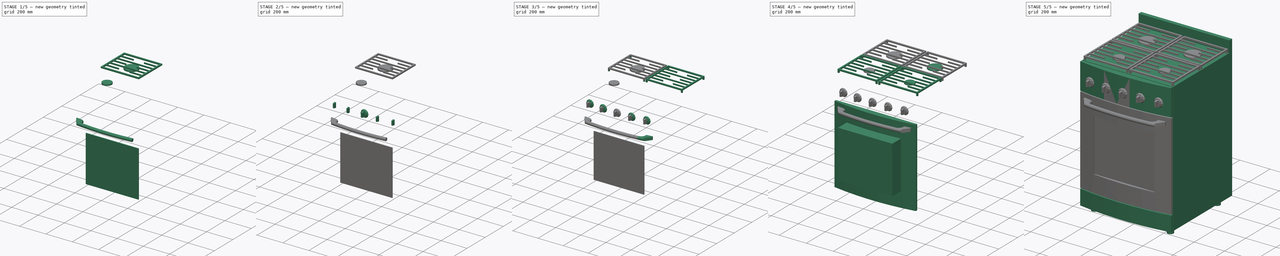
[diagram: build sequence overview — one tinted view per stage of 5, left to right]
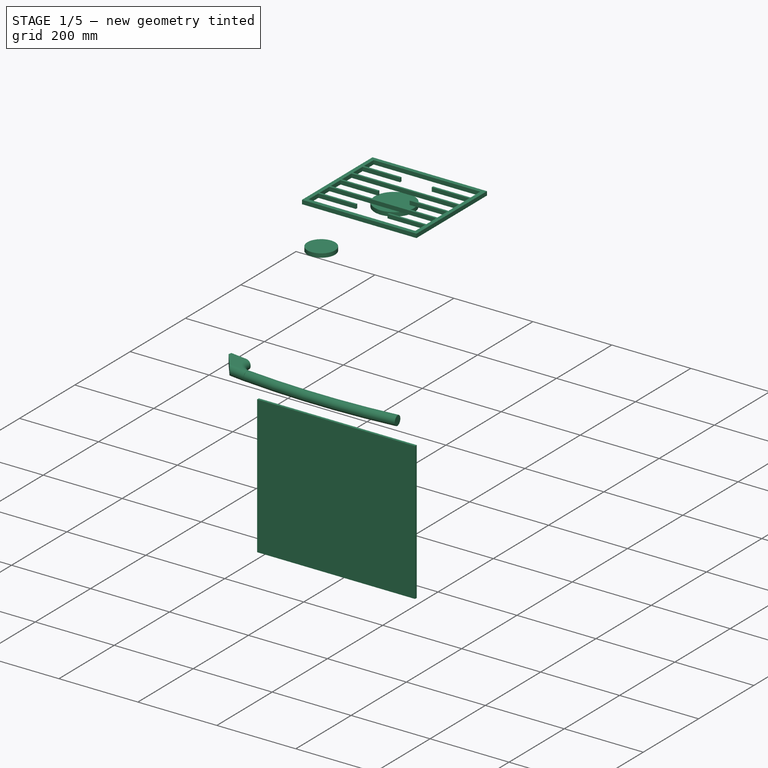
[diagram: stage 1 of 5 — iso view after this stage's code; geometry added in this stage tinted green]
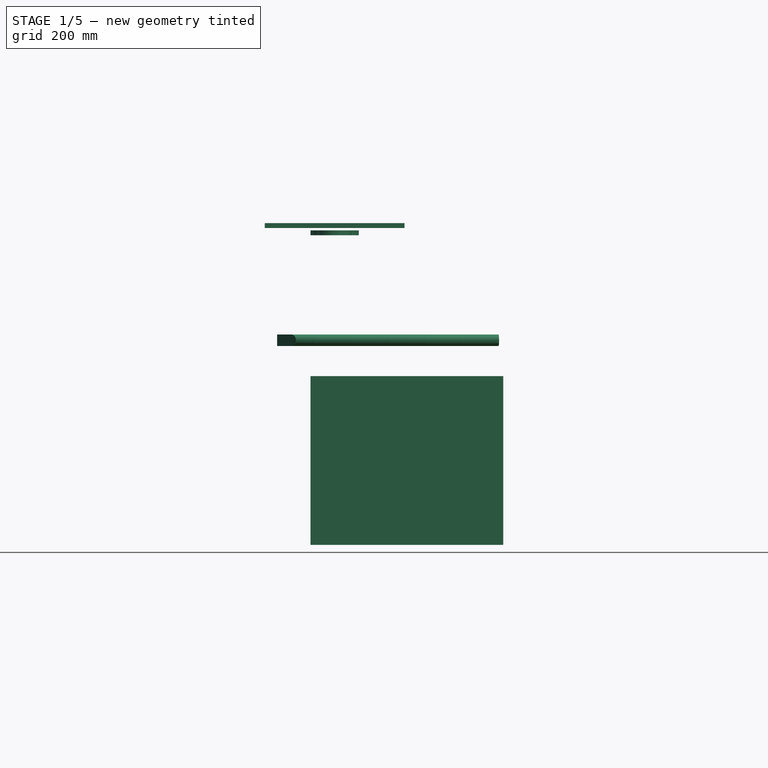
[diagram: stage 1 of 5 — front view after this stage's code; geometry added in this stage tinted green]
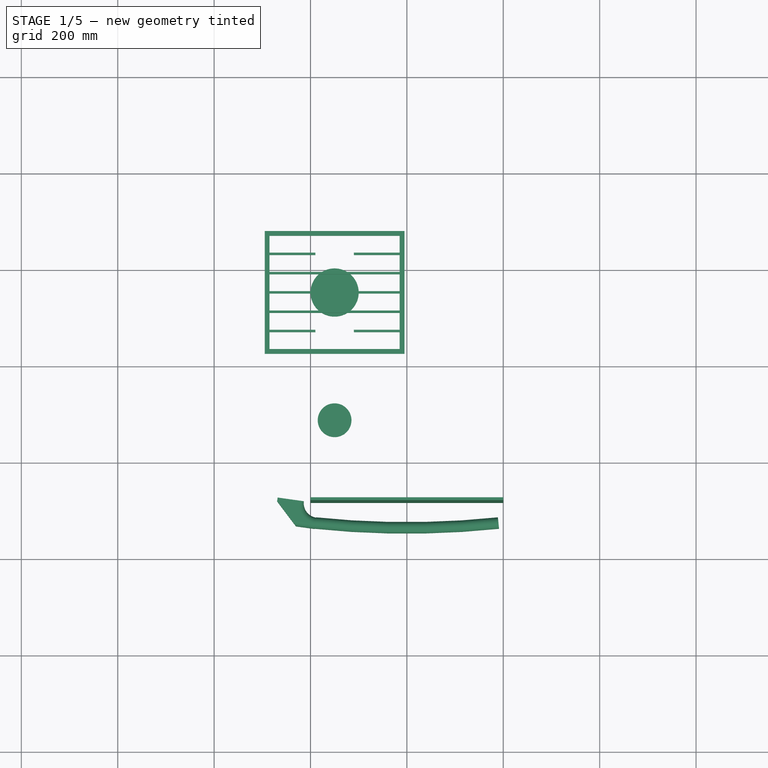
[diagram: stage 1 of 5 — top view after this stage's code; geometry added in this stage tinted green]
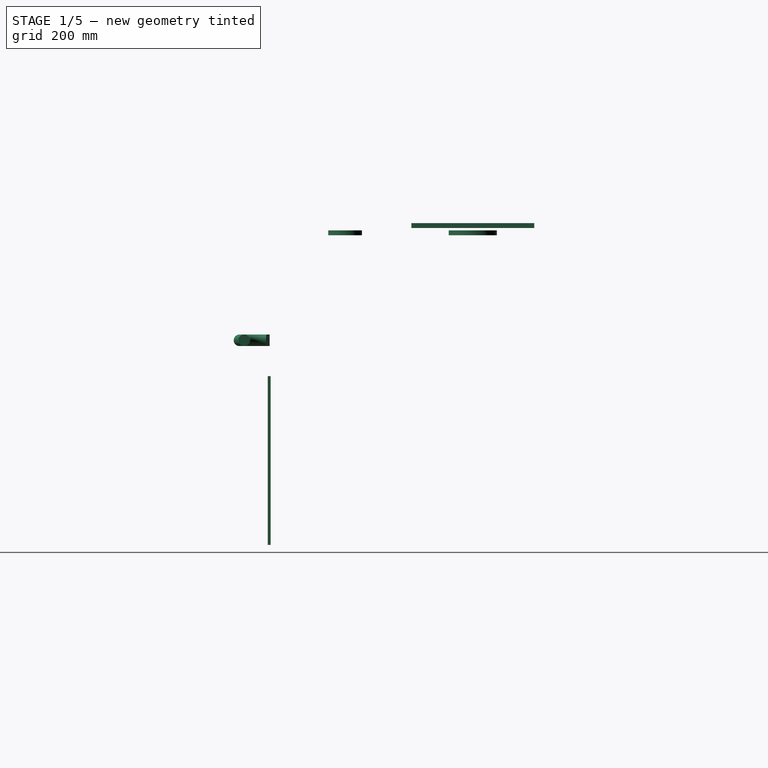
[diagram: stage 1 of 5 — right view after this stage's code; geometry added in this stage tinted green]
FCSTD DOCUMENT  (FreeCAD 0.21R33771 (Git))
Label: Stove_R02
License: All rights reserved
LicenseURL: https://en.wikipedia.org/wiki/All_rights_reserved
objects: Sketcher::SketchObject×16, App::DocumentObjectGroup×15, Part::Extrusion×14, App::FeaturePython×7, App::MaterialObjectPython×6, Part::FeaturePython×5, Part::Part2DObjectPython×5, Part::Fillet×3, Part::MultiFuse×2, Part::Loft×2, App::TextDocument×2, Spreadsheet::Sheet×1, Part::Cut×1, App::DocumentObjectGroupPython×1, Part::Sweep×1, Part::Feature×1
note: 56 computed .brp shape members not serialized (recipe doc carries the construction recipe); baked Part::Feature solids carry a one-line shape summary decoded from their .brp

FEATURE [Part::Extrusion] Extrude084143229  label="02-Oven_window"
  Base = -> Sketch1126
  Dir = (0,-1,2e-16)
  DirMode = 2
  FaceMakerClass = Part::FaceMakerBullseye
  LengthFwd = 6
  LengthRev = 0
  Material = -> Material037
  Solid = true
  Symmetric = true
  expr: Material = Prop.Front_panels_C_Glass_window_material
  expr: Visibility = Prop.Visualization_A_Visualization
FEATURE [Sketcher::SketchObject] Sketch1128
  AttachmentOffset = pos=(-150,0,900) rot=(0,0,1;0rad)
  ExternalGeometry = -> [Sketch022]
  FullyConstrained = true
  MapMode = 2
  Placement = pos=(-150,0,900) rot=(0,0,1;0rad)
  Support = -> [Sketch022]
  expr: .AttachmentOffset.Base.x = -Prop.Base_dimensions_B_Width / 2 + Prop.Base_dimensions_B_Width / (Prop.Burnes_B_Number_burnes_lines < +1 ? 1 : Prop.Burnes_B_Number_burnes_lines) / 2
  expr: .AttachmentOffset.Base.z = Prop.Base_dimensions_B_Height
  expr: .Constraints.Distance = (Prop.Base_dimensions_B_Depth - Prop.Rear_panel_B_Thickness - Prop.Front_panels_B_Thickness - Prop.Front_panels_B_Gap_between_panels) / 2
  expr: .Constraints.Radius_01 = Prop.Burnes_B_Radius_01
  expr: .Constraints.Radius_02 = Prop.Burnes_B_Radius_02
  expr: .Constraints.Retreat = Prop.Rear_panel_B_Thickness + (Prop.Base_dimensions_B_Depth - Prop.Rear_panel_B_Thickness - Prop.Front_panels_B_Thickness - Prop.Front_panels_B_Gap_between_panels) / 4
  sketch-geometry (2):
    g0: Circle CenterX=0 CenterY=142.5 CenterZ=0 NormalX=0 NormalY=0 NormalZ=1 AngleXU=0 Radius=50
    g1: Circle CenterX=0 CenterY=-122.5 CenterZ=0 NormalX=0 NormalY=0 NormalZ=1 AngleXU=0 Radius=35
  constraints (6):
    c: Radius(g0) = 50  'Radius_02'
    c: PointOnObject(g0,g-2)
    c: Radius(g1) = 35  'Radius_01'
    c: DistanceY(g1,g0) = 265  'Distance'
    c: PointOnObject(g1,g-2)
    c: DistanceY(g0,g-4) = 157.5  'Retreat'
FEATURE [Sketcher::SketchObject] Sketch1129  label="Sketch1129_path_Burnes"
  FullyConstrained = true
  MapMode = 2
  Support = -> [Sketch022]
  expr: .Constraints.Distance = Prop.Base_dimensions_B_Width - Prop.Base_dimensions_B_Width / (Prop.Burnes_B_Number_burnes_lines <= 1 ? 1 : Prop.Burnes_B_Number_burnes_lines)
  sketch-geometry (1):
    g0: LineSegment StartX=0 StartY=0 StartZ=0 EndX=300 EndY=0 EndZ=0
  constraints (3):
    c: Coincident(g0,g-1)
    c: Horizontal(g0)
    c: DistanceX(g0,g0) = 300  'Distance'
FEATURE [Part::Extrusion] Extrude084143231  label="Extrude084143239"
  Base = -> Sketch1128
  Dir = (0,0,1)
  DirMode = 2
  FaceMakerClass = Part::FaceMakerBullseye
  LengthFwd = 10
  LengthRev = 0
  Solid = true
  Symmetric = false
FEATURE [Sketcher::SketchObject] Sketch1130
  AttachmentOffset = pos=(-150,0,900) rot=(0,0,1;0rad)
  ExternalGeometry = -> [Sketch022]
  FullyConstrained = false
  MapMode = 2
  Placement = pos=(-150,0,900) rot=(0,0,1;0rad)
  Support = -> [Sketch022]
  expr: .AttachmentOffset.Base.x = -Prop.Base_dimensions_B_Width / 2 + Prop.Base_dimensions_B_Width / (Prop.Burnes_B_Number_burnes_lines < +1 ? 1 : Prop.Burnes_B_Number_burnes_lines) / 2
  expr: .AttachmentOffset.Base.z = Prop.Base_dimensions_B_Height
  expr: .Constraints.Depth = (Prop.Base_dimensions_B_Depth - Prop.Rear_panel_B_Thickness - Prop.Front_panels_B_Thickness - Prop.Front_panels_B_Gap_between_panels) / 2 - 10 mm
  expr: .Constraints.Radius_01 = Prop.Burnes_B_Radius_01
  expr: .Constraints.Rear_distance = Prop.Rear_panel_B_Thickness + (Prop.Base_dimensions_B_Depth - Prop.Rear_panel_B_Thickness - Prop.Front_panels_B_Thickness - Prop.Front_panels_B_Gap_between_panels) / 4
  expr: .Constraints.Width = Prop.Base_dimensions_B_Width / (Prop.Burnes_B_Number_burnes_lines <= 1 ? 1 : Prop.Burnes_B_Number_burnes_lines) - 10 mm
  expr: Constraints[110] = Prop.Burnes_B_Radius_01 * 2 + 10 mm
  sketch-geometry (53):
    g0: Circle CenterX=0 CenterY=-122.5 CenterZ=0 NormalX=0 NormalY=0 NormalZ=1 AngleXU=0 Radius=35
    g1: LineSegment StartX=-145 StartY=270 StartZ=0 EndX=145 EndY=270 EndZ=0
    g2: LineSegment StartX=145 StartY=270 StartZ=0 EndX=145 EndY=15 EndZ=0
    g3: LineSegment StartX=145 StartY=15 StartZ=0 EndX=-145 EndY=15 EndZ=0
    g4: LineSegment StartX=-145 StartY=15 StartZ=0 EndX=-145 EndY=270 EndZ=0
    g5: LineSegment StartX=-135 StartY=260 StartZ=0 EndX=135 EndY=260 EndZ=0
    g6: LineSegment StartX=135 StartY=260 StartZ=0 EndX=135 EndY=225 EndZ=0
    g7: LineSegment StartX=135 StartY=225 StartZ=0 EndX=40 EndY=225 EndZ=0
    g8: LineSegment StartX=-135 StartY=225 StartZ=0 EndX=-135 EndY=260 EndZ=0
    g9: LineSegment StartX=-135 StartY=220 StartZ=0 EndX=-40 EndY=220 EndZ=0
    g10: LineSegment StartX=135 StartY=220 StartZ=0 EndX=135 EndY=185 EndZ=0
    g11: LineSegment StartX=135 StartY=185 StartZ=0 EndX=-135 EndY=185 EndZ=0
    g12: LineSegment StartX=-135 StartY=185 StartZ=0 EndX=-135 EndY=220 EndZ=0
    g13: LineSegment StartX=-135 StartY=180 StartZ=0 EndX=135 EndY=180 EndZ=0
    g14: LineSegment StartX=135 StartY=180 StartZ=0 EndX=135 EndY=145 EndZ=0
    g15: LineSegment StartX=135 StartY=145 StartZ=0 EndX=40 EndY=145 EndZ=0
    g16: LineSegment StartX=-135 StartY=145 StartZ=0 EndX=-135 EndY=180 EndZ=0
    g17: LineSegment StartX=-135 StartY=140 StartZ=0 EndX=-40 EndY=140 EndZ=0
    g18: LineSegment StartX=135 StartY=140 StartZ=0 EndX=135 EndY=105 EndZ=0
    g19: LineSegment StartX=135 StartY=105 StartZ=0 EndX=-135 EndY=105 EndZ=0
    g20: LineSegment StartX=-135 StartY=105 StartZ=0 EndX=-135 EndY=140 EndZ=0
    g21: LineSegment StartX=-135 StartY=100 StartZ=0 EndX=135 EndY=100 EndZ=0
    g22: LineSegment StartX=135 StartY=100 StartZ=0 EndX=135 EndY=65 EndZ=0
    g23: LineSegment StartX=135 StartY=65 StartZ=0 EndX=40 EndY=65 EndZ=0
    g24: LineSegment StartX=-135 StartY=65 StartZ=0 EndX=-135 EndY=100 EndZ=0
    g25: LineSegment StartX=-135 StartY=60 StartZ=0 EndX=-40 EndY=60 EndZ=0
    g26: LineSegment StartX=135 StartY=60 StartZ=0 EndX=135 EndY=25 EndZ=0
    g27: LineSegment StartX=135 StartY=25 StartZ=0 EndX=-135 EndY=25 EndZ=0
    g28: LineSegment StartX=-135 StartY=25 StartZ=0 EndX=-135 EndY=60 EndZ=0
    g29: LineSegment StartX=-135 StartY=260 StartZ=0 EndX=135 EndY=260 EndZ=0
    g30: LineSegment StartX=135 StartY=260 StartZ=0 EndX=135 EndY=25 EndZ=0
    g31: LineSegment StartX=135 StartY=25 StartZ=0 EndX=-135 EndY=25 EndZ=0
    g32: LineSegment StartX=-135 StartY=25 StartZ=0 EndX=-135 EndY=260 EndZ=0
    g33: LineSegment StartX=-65.909 StartY=225 StartZ=0 EndX=-65.909 EndY=220 EndZ=0
    g34: LineSegment StartX=-50.5455 StartY=185 StartZ=0 EndX=-50.5455 EndY=180 EndZ=0
    g35: LineSegment StartX=-53.3265 StartY=145 StartZ=0 EndX=-53.3265 EndY=140 EndZ=0
    g36: LineSegment StartX=-50.5455 StartY=105 StartZ=0 EndX=-50.5455 EndY=100 EndZ=0
    g37: LineSegment StartX=-48.1975 StartY=65 StartZ=0 EndX=-48.1975 EndY=60 EndZ=0
    g38: LineSegment StartX=-40 StartY=220 StartZ=0 EndX=-40 EndY=65 EndZ=0
    g39: LineSegment StartX=40 StartY=220 StartZ=0 EndX=40 EndY=65 EndZ=0
    g40: LineSegment StartX=-40 StartY=145 StartZ=0 EndX=-40 EndY=140 EndZ=0
    g41: LineSegment StartX=40 StartY=145 StartZ=0 EndX=40 EndY=140 EndZ=0
    g42: LineSegment StartX=-40 StartY=145 StartZ=0 EndX=-135 EndY=145 EndZ=0
    g43: LineSegment StartX=40 StartY=140 StartZ=0 EndX=135 EndY=140 EndZ=0
    g44: LineSegment StartX=40 StartY=220 StartZ=0 EndX=40 EndY=225 EndZ=0
    g45: LineSegment StartX=-40 StartY=225 StartZ=0 EndX=-135 EndY=225 EndZ=0
    g46: LineSegment StartX=40 StartY=220 StartZ=0 EndX=135 EndY=220 EndZ=0
    g47: LineSegment StartX=-40 StartY=65 StartZ=0 EndX=-40 EndY=60 EndZ=0
    g48: LineSegment StartX=40 StartY=65 StartZ=0 EndX=40 EndY=60 EndZ=0
    g49: LineSegment StartX=-40 StartY=65 StartZ=0 EndX=-135 EndY=65 EndZ=0
    g50: LineSegment StartX=40 StartY=60 StartZ=0 EndX=135 EndY=60 EndZ=0
    g51: LineSegment StartX=-40 StartY=225 StartZ=0 EndX=-40 EndY=220 EndZ=0
    g52: LineSegment StartX=-189.581 StartY=142.5 StartZ=0 EndX=202.365 EndY=142.5 EndZ=0
  constraints (153):
    c: Radius(g0) = 35  'Radius_01'
    c: Coincident(g1,g2)
    c: Coincident(g2,g3)
    c: Coincident(g3,g4)
    c: Coincident(g4,g1)
    c: Horizontal(g3)
    c: Vertical(g2)
    c: Vertical(g4)
    c: Coincident(g5,g6)
    c: Coincident(g6,g7)
    c: Coincident(g45,g8)
    c: Coincident(g8,g5)
    c: Horizontal(g5)
    c: Horizontal(g7)
    c: Vertical(g6)
    c: Vertical(g8)
    c: Coincident(g46,g10)
    c: Coincident(g10,g11)
    c: Coincident(g11,g12)
    c: Coincident(g12,g9)
    c: Horizontal(g9)
    c: Horizontal(g11)
    c: Vertical(g10)
    c: Vertical(g12)
    c: Coincident(g13,g14)
    c: Coincident(g14,g15)
    c: Coincident(g42,g16)
    c: Coincident(g16,g13)
    c: Horizontal(g13)
    c: Horizontal(g15)
    c: Vertical(g14)
    c: Vertical(g16)
    c: Coincident(g43,g18)
    c: Coincident(g18,g19)
    c: Coincident(g19,g20)
    c: Coincident(g20,g17)
    c: Horizontal(g17)
    c: Horizontal(g19)
    c: Vertical(g18)
    c: Vertical(g20)
    c: Coincident(g21,g22)
    c: Coincident(g22,g23)
    c: Coincident(g49,g24)
    c: Coincident(g24,g21)
    c: Horizontal(g21)
    c: Horizontal(g23)
    c: Vertical(g22)
    c: Vertical(g24)
    c: Coincident(g50,g26)
    c: Coincident(g26,g27)
    c: Coincident(g27,g28)
    c: Coincident(g28,g25)
    c: Horizontal(g25)
    c: Horizontal(g27)
    c: Vertical(g26)
    c: Vertical(g28)
    c: Coincident(g29,g30)
    c: Coincident(g30,g31)
    c: Coincident(g31,g32)
    c: Coincident(g32,g29)
    c: Horizontal(g29)
    c: Horizontal(g31)
    c: Vertical(g30)
    c: Vertical(g32)
    c: Coincident(g29,g5)
    c: Coincident(g30,g26)
    c: PointOnObject(g9,g32)
    c: PointOnObject(g10,g30)
    c: PointOnObject(g13,g30)
    c: PointOnObject(g42,g32)
    c: PointOnObject(g17,g32)
    c: PointOnObject(g18,g30)
    c: PointOnObject(g21,g32)
    c: PointOnObject(g22,g30)
    c: PointOnObject(g25,g32)
    c: Equal(g6,g10)
    c: Equal(g10,g14)
    c: Equal(g14,g18)
    c: Equal(g18,g22)
    c: Equal(g22,g26)
    c: DistanceY(g29,g1) = 10
    c: DistanceX(g1,g5) = 10
    c: PointOnObject(g6,g30)
    c: DistanceX(g5,g1) = 10
    c: PointOnObject(g33,g7)
    c: PointOnObject(g33,g9)
    c: Vertical(g33)
    c: PointOnObject(g34,g11)
    c: PointOnObject(g34,g13)
    c: Vertical(g34)
    c: PointOnObject(g35,g15)
    c: PointOnObject(g35,g17)
    c: Vertical(g35)
    c: PointOnObject(g36,g19)
    c: PointOnObject(g36,g21)
    c: Vertical(g36)
    c: PointOnObject(g37,g23)
    c: PointOnObject(g37,g25)
    c: Equal(g33,g34)
    c: Equal(g34,g35)
    c: Equal(g35,g36)
    c: Equal(g36,g37)
    c: Vertical(g37)
    c: DistanceY(g33,g33) = 5
    c: DistanceX(g1,g1) = 290  'Width'
    c: Symmetric(g1,g1,g-2)
    c: DistanceY(g2,g2) = 255  'Depth'
    c: Vertical(g38)
    c: Vertical(g39)
    c: Symmetric(g38,g39,g-2)
    c: DistanceX(g38,g39) = 80
    c: PointOnObject(g40,g15)
    c: PointOnObject(g40,g17)
    c: Vertical(g40)
    c: PointOnObject(g40,g38)
    c: PointOnObject(g41,g15)
    c: PointOnObject(g41,g17)
    c: Vertical(g41)
    c: PointOnObject(g41,g39)
    c: PointOnObject(g15,g39)
    c: PointOnObject(g42,g38)
    c: PointOnObject(g17,g38)
    c: Coincident(g44,g39)
    c: Vertical(g44)
    c: Coincident(g7,g44)
    c: PointOnObject(g9,g38)
    c: Coincident(g46,g39)
    c: Coincident(g47,g38)
    c: Vertical(g47)
    c: Coincident(g48,g39)
    c: Vertical(g48)
    c: Coincident(g23,g39)
    c: Coincident(g49,g38)
    c: Coincident(g25,g47)
    c: Coincident(g50,g48)
    c: Horizontal(g46)
    c: Horizontal(g43)
    c: Coincident(g51,g45)
    c: Coincident(g51,g9)
    c: Vertical(g51)
    c: PointOnObject(g33,g45)
    c: Horizontal(g45)
    c: Horizontal(g9,g44)
    c: Horizontal(g50)
    c: PointOnObject(g35,g42)
    c: Horizontal(g42)
    c: Horizontal(g49)
    c: PointOnObject(g37,g49)
    c: Coincident(g41,g43)
    c: Equal(g47,g48)
    c: DistanceY(g2,g26) = 10
    c: Symmetric(g1,g2,g52)
    c: DistanceY(g52,g-4) = 157.5  'Rear_distance'
FEATURE [Part::Extrusion] Extrude084143232  label="Grate_"
  Base = -> Sketch1130
  Dir = (0,0,1)
  DirMode = 2
  FaceMakerClass = Part::FaceMakerBullseye
  LengthFwd = 10
  LengthRev = 0
  Placement = pos=(0,0,15) rot=(0,0,1;0rad)
  Solid = true
  Symmetric = false
FEATURE [Sketcher::SketchObject] Sketch1138  label="Sketch1138_Path_handle"
  AttachmentOffset = pos=(0,-342,670) rot=(0,0,1;0rad)
  FullyConstrained = true
  MapMode = 2
  Placement = pos=(0,-342,670) rot=(0,0,1;0rad)
  Support = -> [Sketch022]
  expr: .AttachmentOffset.Base.y = -Prop.Base_dimensions_B_Depth / 2 - 42 mm
  expr: .AttachmentOffset.Base.z = Prop.Feet_B_Height + Prop.Front_panels_B_Ash_panel_height + Prop.Front_panels_B_Gap_between_panels + Prop.Front_panels_B_Front_door_height - 50 mm
  expr: .Constraints.Length = Prop.Base_dimensions_B_Width - 220 mm
  expr: .Constraints.Radius = Sketch023.Constraints.Radius_reference
  sketch-geometry (1):
    g0: ArcOfCircle CenterX=3.304e-13 CenterY=1812.5 CenterZ=0 NormalX=0 NormalY=0 NormalZ=1 AngleXU=0 Radius=1812.5 StartAngle=4.60737 EndAngle=4.81741
  constraints (4):
    c: Tangent(g0,g-1)
    c: Symmetric(g0,g0,g-2)
    c: DistanceX(g0,g0) = 380  'Length'
    c: Radius(g0) = 1812.5  'Radius'
FEATURE [Part::Sweep] Sweep  label="Bar_001"
  Frenet = true
  Material = -> Material
  Sections = -> [Sketch1137]
  Solid = true
  Spine = -> Sketch1138
  Transition = 1
  expr: Material = Prop.Handle_C_Bar_material
  expr: Visibility = Prop.Visualization_A_Visualization
FEATURE [App::DocumentObjectGroup] Group  label="04-Spreadsheet_001"
  Group = -> [Spreadsheet003]
FEATURE [App::DocumentObjectGroup] Group255  label="06-Materials"
  Group = -> [MaterialContainer]
FEATURE [App::DocumentObjectGroup] Group256  label="07-Paths_"
  Group = -> [Sketch1129,Sketch1131,Sketch1133]
FEATURE [Sketcher::SketchObject] Sketch1139
  AttachmentOffset = pos=(184,-291,-670) rot=(0,0,1;0.139626rad)
  FullyConstrained = true
  MapMode = 2
  Placement = pos=(-184,-291,670) rot=(0.069756,0.997564,0;3.14159rad)
  Support = -> [Sketch022]
  expr: .AttachmentOffset.Base.x = Prop.Base_dimensions_B_Width / 2 - 116 mm
  expr: .AttachmentOffset.Base.y = -Prop.Base_dimensions_B_Depth / 2 + 9 mm
  expr: .AttachmentOffset.Base.z = -(Prop.Feet_B_Height + Prop.Front_panels_B_Ash_panel_height + Prop.Front_panels_B_Gap_between_panels + Prop.Front_panels_B_Front_door_height - 50 mm)
  sketch-geometry (6):
    g0: LineSegment StartX=-5.5e-15 StartY=-30 StartZ=0 EndX=-5.5e-15 EndY=-54 EndZ=0
    g1: LineSegment StartX=-5.5e-15 StartY=-54 StartZ=0 EndX=39 EndY=-54 EndZ=0
    g2: LineSegment StartX=39 StartY=-54 StartZ=0 EndX=85 EndY=-8 EndZ=0
    g3: LineSegment StartX=85 StartY=-8 StartZ=0 EndX=85 EndY=-7.1e-15 EndZ=0
    g4: LineSegment StartX=85 StartY=-7.3e-15 StartZ=0 EndX=30 EndY=-7.3e-15 EndZ=0
    g5: ArcOfCircle CenterX=0 CenterY=0 CenterZ=0 NormalX=0 NormalY=0 NormalZ=1 AngleXU=0 Radius=30 StartAngle=4.71239 EndAngle=6.28319
  constraints (19):
    c: Vertical(g0)
    c: Coincident(g0,g1)
    c: Horizontal(g1)
    c: Coincident(g1,g2)
    c: Coincident(g2,g3)
    c: Coincident(g3,g4)
    c: Horizontal(g4)
    c: Coincident(g5,g0)
    c: Coincident(g5,g4)
    c: Vertical(g3)
    c: Angle(g2,g1) = 2.35619
    c: Perpendicular(g5,g4)
    c: Perpendicular(g5,g0)
    c: Distance(g0) = 24
    c: Distance(g1) = 39
    c: Coincident(g5,g-1)
    c: Radius(g5) = 30
    c: DistanceY(g0,g5) = 54  'Depth'
    c: DistanceX(g5,g3) = 85  'Length'
FEATURE [Part::Extrusion] Extrude084143237  label="Extremity_005"
  Base = -> Sketch1139
  Dir = (0,0,-1)
  DirMode = 2
  FaceMakerClass = Part::FaceMakerBullseye
  LengthFwd = 24
  LengthRev = 0
  Reversed = true
  Solid = true
  Symmetric = false
FEATURE [Part::Fillet] Fillet015146  label="Extremity_006"
  Base = -> Extrude084143237
  Edges = 4 edges r=11.95: [Edge6,Edge7,Edge17,Edge18]
  Material = -> Material014
  expr: Material = Prop.Handle_C_Extremities_material
  expr: Visibility = Prop.Visualization_A_Visualization
FEATURE [App::DocumentObjectGroup] Group247  label="03-Handle_"
  Group = -> [Fillet015145,Sweep,Fillet015146]
FEATURE [App::DocumentObjectGroup] Group249  label="03-Harware_finishes_"
  Group = -> [Group250,Group247,PathArray,PathArray002]
FEATURE [App::DocumentObjectGroup] Group253  label="03-Components_parts_"
  Group = -> [Extrude,Group248,Group249,Extrude084143230,Extrude003]
FEATURE [App::FeaturePython] Section  label="Section_Plan_01"  # WARN: FeaturePython — macro-defined, semantics opaque (R4)
  Clip = false
  Depth = 0
  Objects = -> [Group253]
  OnlySolids = true
  Placement = pos=(0,0,500) rot=(0,0,1;0rad)
  UseMaterialColorForFill = false
FEATURE [App::FeaturePython] Section001  label="Section001_Plan_02"  # WARN: FeaturePython — macro-defined, semantics opaque (R4)
  Clip = false
  Depth = 0
  Objects = -> [Group253]
  OnlySolids = true
  Placement = pos=(0,0,2100) rot=(0,0,1;0rad)
  UseMaterialColorForFill = false
FEATURE [App::FeaturePython] Section002  label="Section002_Lateral_01"  # WARN: FeaturePython — macro-defined, semantics opaque (R4)
  Clip = false
  Depth = 0
  Objects = -> [Group253]
  OnlySolids = true
  Placement = pos=(1500,0,600) rot=(0.57735,0.57735,0.57735;2.0944rad)
  UseMaterialColorForFill = false
FEATURE [App::FeaturePython] Section003  label="Section003_Transversal"  # WARN: FeaturePython — macro-defined, semantics opaque (R4)
  Clip = false
  Depth = 0
  Objects = -> [Group253]
  OnlySolids = true
  Placement = pos=(0,0,600) rot=(0.57735,0.57735,0.57735;2.0944rad)
  UseMaterialColorForFill = false
FEATURE [App::FeaturePython] Section004  label="Section004_Lateral_02"  # WARN: FeaturePython — macro-defined, semantics opaque (R4)
  Clip = false
  Depth = 0
  Objects = -> [Group253]
  OnlySolids = true
  Placement = pos=(-1500,0,600) rot=(-0.57735,0.57735,0.57735;4.18879rad)
  UseMaterialColorForFill = false
FEATURE [App::FeaturePython] Section005  label="Section005_Frontal_"  # WARN: FeaturePython — macro-defined, semantics opaque (R4)
  Clip = false
  Depth = 0
  Objects = -> [Group253]
  OnlySolids = true
  Placement = pos=(0,-1300,600) rot=(1,0,0;1.5708rad)
  UseMaterialColorForFill = false
FEATURE [App::DocumentObjectGroup] Group001  label="Section"
  Group = -> [Section,Section001,Section002,Section003,Section004,Section005]
FEATURE [App::DocumentObjectGroup] Group252  label="02-Elements_to_move_rotate"
  Group = -> [Sketch022,Group001]
FEATURE [App::TextDocument] Text_document001  label="Guidelines_new_objects_properties_"
  Text = <blob: 2847 chars omitted>
FEATURE [App::TextDocument] Text_document  label="Guidelines_stove_file_configurations_"
  Text = Some guidelines for using this component file.\n-----------------------------------------\n\n1. Basic workflow for component configuration (see video)\n\nThrough the properties window ("01-Prop_Stove_configurations_#_") it is possible to configure the basic dimensions of the component (height, length, and depth) and its parts such as panels (inferior, superior, and rear), handle, and burnes, as well their respective materials.\n\n2. Component insertion\n\nOpen the "02-Elements_to_move_rotate" folder and select the "Stove_base_move_rotate_#_" Sketch. If you are going to use the 2D projections of the component in your project, also select the sections from the “Sections” folder as needed (for plans, sections, and views).\n\nDrag the selection to the final insertion position of the component in the project, rotating it later if necessary. Make new configurations of the component if necessary.\n\n3. To generate the corresponding 2D projections, use the pre-established sections by adding the necessary objects to them and click on "Shape 2D view" (Draft_Shape2DView).\n\n4. Cautions:\n\n4.1. Set dimensions and quantities close to those used in reality, otherwise it could destroy the structure of a piece or the assembly itself.\n\n4.2. Where applicable, one of the main considerations when configuring arrays is to avoid accidentally assign large values ​​(hundreds or thousands) for the quantities of parts of the part, for example.\n\n4.4. When searching for a profile or material, use the folder according to the type one is looking for, this will make the task much easier. Materials, for example, are organized into different groups (see video).
FEATURE [App::DocumentObjectGroup] Group254  label="05-Guidelines_"
  Group = -> [Text_document001,Text_document]
FEATURE [Part::Feature] Prop  label="01-Prop_Stove_configurations_#_"
  Base_dimensions_B_Depth = 600
  Base_dimensions_B_Height = 900
  Base_dimensions_B_Width = 600
  Body_C_Material = -> Material042
  Burnes_B_Material = -> Material014
  Burnes_B_Number_burnes_lines = 2
  Burnes_B_Radius_01 = 35
  Burnes_B_Radius_02 = 50
  Feet_B_Height = 40
  Feet_B_Radius = 20
  Feet_C_Material = -> Material014
  Front_panels_B_Ash_panel_height = 100
  Front_panels_B_Control_panel_height = 150
  Front_panels_B_Front_door_height = 575
  Front_panels_B_Gap_between_panels = 5
  Front_panels_B_Glass_window_height = 350
  Front_panels_B_Glass_window_width = 400
  Front_panels_B_Thickness = 40
  Front_panels_C_Ash_panel_material = -> Material042
  Front_panels_C_Control_panel_material = -> Material042
  Front_panels_C_Front_door_material = -> Material014
  Front_panels_C_Glass_window_material = -> Material037
  Grates_C_Material = -> Material043
  Handle_C_Bar_material = -> Material
  Handle_C_Extremities_material = -> Material014
  Knobs_finishes_C_Knobs_base_material = -> Material014
  Knobs_finishes_C_Knobs_extremity_material = -> Material
  Rear_panel_B_Height = 75
  Rear_panel_B_Thickness = 25
  Rear_panel_C_Material = -> Material014
  Visualization_A_Visualization = true
FEATURE [App::DocumentObjectGroup] Group260  label="Stove_#_"
  Group = -> [Prop,Group252,Group253,Group,Group254,Group255,Group256]
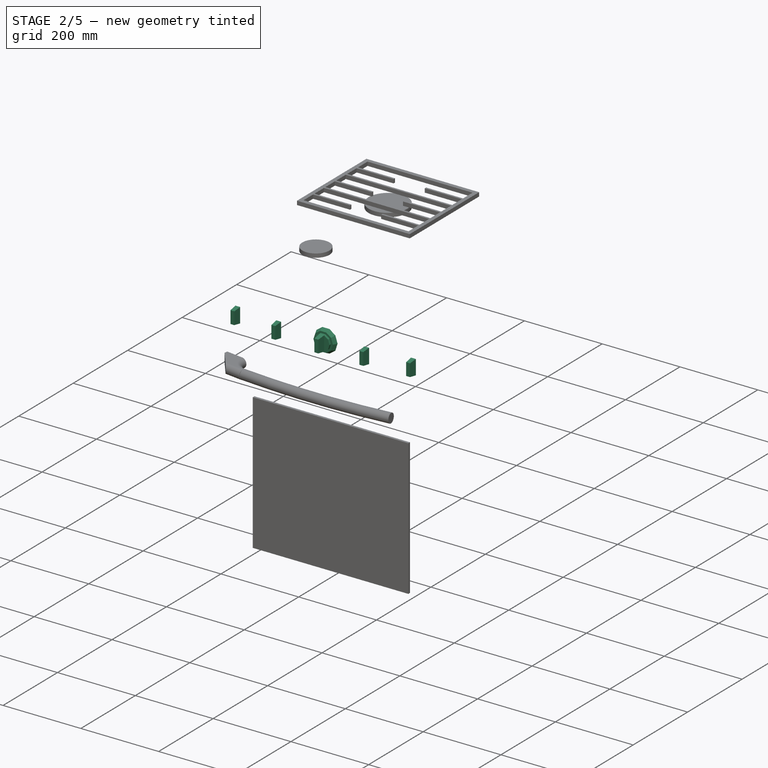
[diagram: stage 2 of 5 — iso view after this stage's code; geometry added in this stage tinted green]
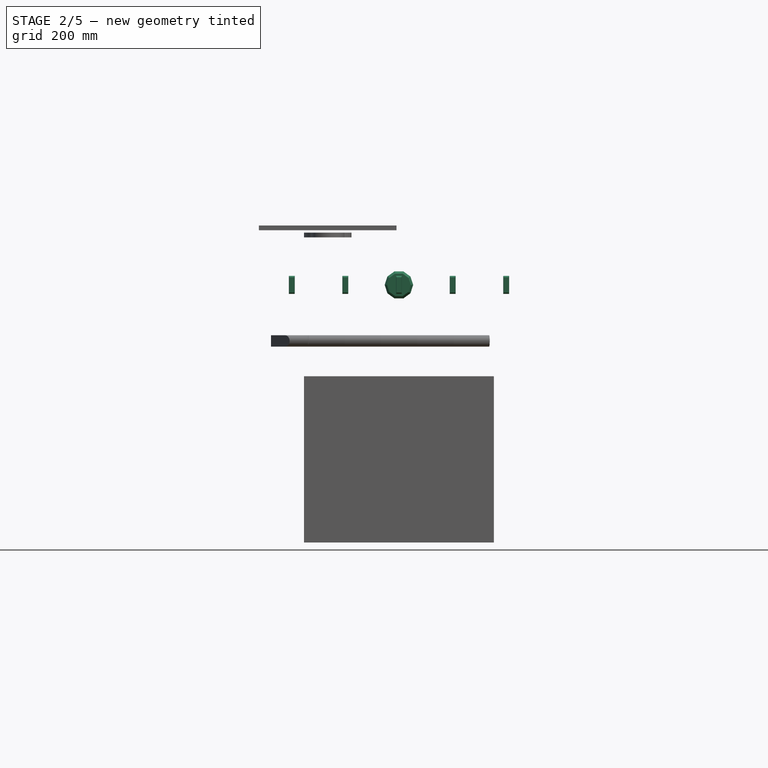
[diagram: stage 2 of 5 — front view after this stage's code; geometry added in this stage tinted green]
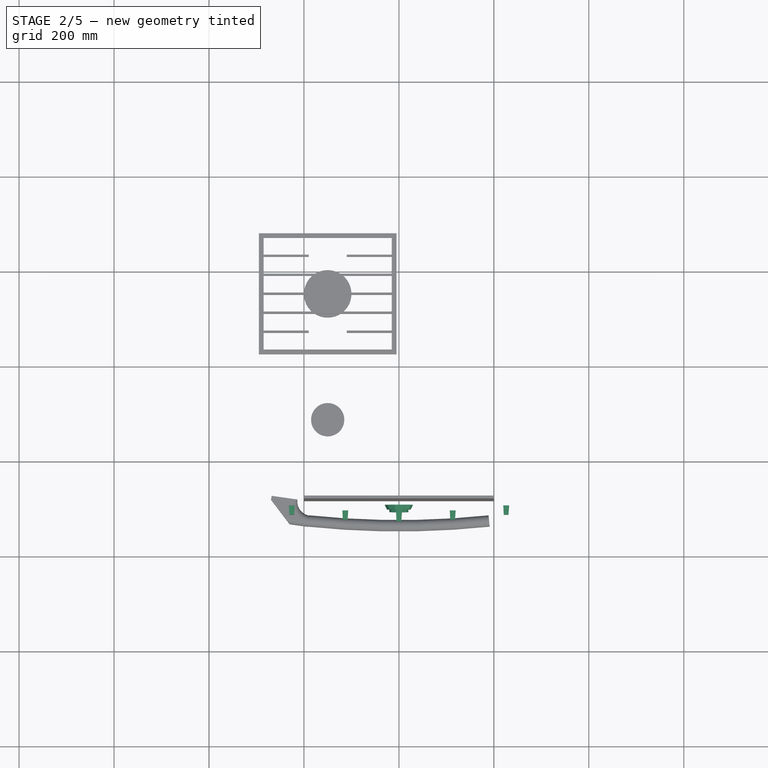
[diagram: stage 2 of 5 — top view after this stage's code; geometry added in this stage tinted green]
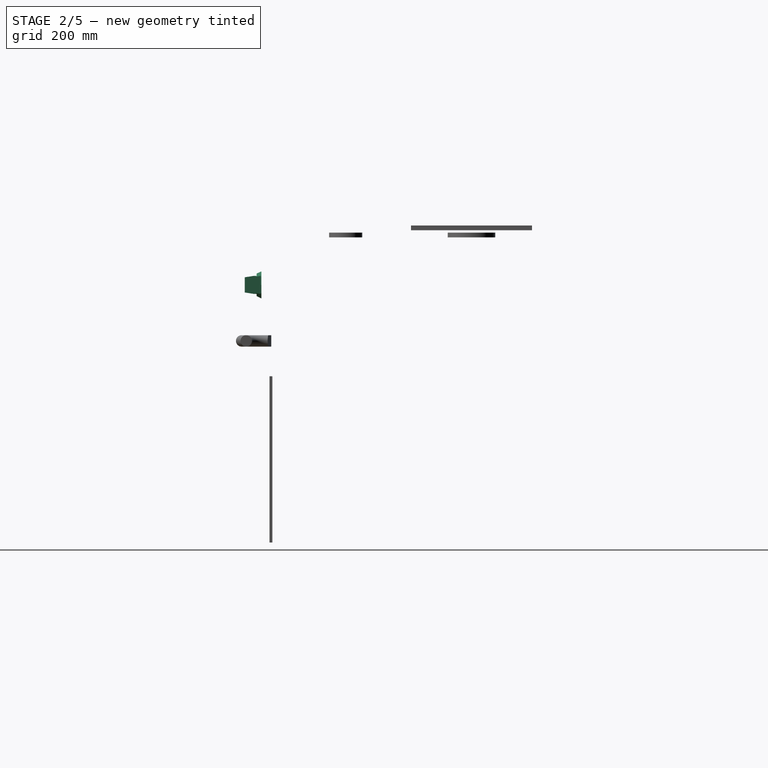
[diagram: stage 2 of 5 — right view after this stage's code; geometry added in this stage tinted green]
FEATURE [Part::Part2DObjectPython] Polygon004  # Draft 2D object (typed FeaturePython)
  Area = 2645.03
  AttachmentOffset = pos=(0,800,300) rot=(0,0,1;0rad)
  ChamferSize = 0
  DrawMode = 0
  FacesNumber = 10
  FilletRadius = 0
  MakeFace = true
  MapMode = 3
  Placement = pos=(0,-300,800) rot=(1,0,0;1.5708rad)
  Radius = 30
  Support = -> [Sketch022]
  expr: .AttachmentOffset.Base.x = 0 mm
  expr: .AttachmentOffset.Base.y = Prop.Base_dimensions_B_Height - 100 mm
  expr: .AttachmentOffset.Base.z = Prop.Base_dimensions_B_Depth / 2
FEATURE [Part::Part2DObjectPython] Polygon005  # Draft 2D object (typed FeaturePython)
  Area = 1836.83
  AttachmentOffset = pos=(0,800,310) rot=(0,0,1;0rad)
  ChamferSize = 0
  DrawMode = 0
  FacesNumber = 10
  FilletRadius = 0
  MakeFace = true
  MapMode = 3
  Placement = pos=(0,-310,800) rot=(1,0,0;1.5708rad)
  Radius = 25
  Support = -> [Sketch022]
  expr: .AttachmentOffset.Base.x = 0 mm
  expr: .AttachmentOffset.Base.y = +Prop.Base_dimensions_B_Height - 100 mm
  expr: .AttachmentOffset.Base.z = 10 mm + Prop.Base_dimensions_B_Depth / 2
FEATURE [Part::Loft] Loft016
  Closed = false
  MaxDegree = 5
  Ruled = true
  Sections = -> [Polygon004,Polygon005]
  Solid = true
FEATURE [Part::Part2DObjectPython] Polygon006  # Draft 2D object (typed FeaturePython)
  Area = 1175.57
  AttachmentOffset = pos=(0,800,310) rot=(0,0,1;0rad)
  ChamferSize = 0
  DrawMode = 0
  FacesNumber = 10
  FilletRadius = 0
  MakeFace = true
  MapMode = 3
  Placement = pos=(0,-310,800) rot=(1,0,0;1.5708rad)
  Radius = 20
  Support = -> [Sketch022]
  expr: .AttachmentOffset.Base.x = 0 mm
  expr: .AttachmentOffset.Base.y = +Prop.Base_dimensions_B_Height - 100 mm
  expr: .AttachmentOffset.Base.z = 10 mm + Prop.Base_dimensions_B_Depth / 2
FEATURE [Part::Extrusion] Extrude084143234  label="Extrude084143238"
  Base = -> Polygon006
  Dir = (0,-1,2e-16)
  DirMode = 2
  FaceMakerClass = Part::FaceMakerBullseye
  LengthFwd = 5.5
  LengthRev = 0
  Solid = false
  Symmetric = false
FEATURE [Part::Part2DObjectPython] Rectangle663  # Draft 2D object (typed FeaturePython)
  Area = 320
  AttachmentOffset = pos=(-5,784,335) rot=(0,0,1;0rad)
  ChamferSize = 0
  Columns = 1
  FilletRadius = 0
  Height = 32
  Length = 10
  MakeFace = true
  MapMode = 3
  Placement = pos=(-5,-335,784) rot=(1,0,0;1.5708rad)
  Rows = 1
  Support = -> [Sketch022]
  expr: .AttachmentOffset.Base.x = -5 mm
  expr: .AttachmentOffset.Base.y = -16 mm + Prop.Base_dimensions_B_Height - 100 mm
  expr: .AttachmentOffset.Base.z = 35 mm + Prop.Base_dimensions_B_Depth / 2
FEATURE [Part::Part2DObjectPython] Rectangle664  # Draft 2D object (typed FeaturePython)
  Area = 470.228
  AttachmentOffset = pos=(-6,781,315.5) rot=(0,0,1;0rad)
  ChamferSize = 0
  Columns = 1
  FilletRadius = 0
  Height = 38.0423
  Length = 12.3607
  MakeFace = true
  MapMode = 3
  Placement = pos=(-6,-315.5,781) rot=(1,0,0;1.5708rad)
  Rows = 1
  Support = -> [Sketch022]
  expr: .AttachmentOffset.Base.x = -6 mm
  expr: .AttachmentOffset.Base.y = -19 mm + Prop.Base_dimensions_B_Height - 100 mm
  expr: .AttachmentOffset.Base.z = 15.5 mm + Prop.Base_dimensions_B_Depth / 2
FEATURE [Part::Loft] Loft017
  Closed = false
  MaxDegree = 5
  Ruled = true
  Sections = -> [Rectangle664,Rectangle663]
  Solid = true
FEATURE [Sketcher::SketchObject] Sketch1133  label="Sketch1133_Path_knobs"
  FullyConstrained = true
  MapMode = 2
  Support = -> [Sketch022]
  expr: .Constraints.Length = Prop.Base_dimensions_B_Width
  expr: .Constraints.Radius = Sketch023.Constraints.Radius_reference
  expr: Constraints[5] = Prop.Base_dimensions_B_Width
  sketch-geometry (2):
    g0: LineSegment StartX=0 StartY=0 StartZ=0 EndX=600 EndY=0 EndZ=0
    g1: ArcOfCircle CenterX=1.85e-13 CenterY=1812.5 CenterZ=0 NormalX=0 NormalY=0 NormalZ=1 AngleXU=0 Radius=1812.5 StartAngle=4.54611 EndAngle=4.87867
  constraints (7):
    c: Coincident(g0,g-1)
    c: Horizontal(g0)
    c: DistanceX(g0,g0) = 600  'Length'
    c: Tangent(g1,g-1)
    c: Symmetric(g1,g1,g-2)
    c: DistanceX(g1,g1) = 600
    c: Radius(g1) = 1812.5  'Radius'
FEATURE [Part::MultiFuse] Fusion001
  Shapes = -> [Extrude084143234,Loft016]
FEATURE [Part::FeaturePython] PathArray004  label="03-Knobs_001"  # WARN: FeaturePython — macro-defined, semantics opaque (R4)
  Align = false
  AlignMode = 0
  Base = -> Loft017
  Count = 5
  EndOffset = 75
  ExtraTranslation = (0,0,0)
  ForceVertical = false
  Material = -> Material
  PathObject = -> Sketch1133
  StartOffset = 75
  TangentVector = (1,0,0)
  VerticalVector = (0,0,1)
  expr: .ExtraTranslation.x = -Sketch022.Placement.Base.x
  expr: .ExtraTranslation.y = -Sketch022.Placement.Base.y
  expr: .ExtraTranslation.z = -Sketch022.Placement.Base.z
  expr: Count = (Prop.Burnes_B_Number_burnes_lines <= 1 ? 1 : Prop.Burnes_B_Number_burnes_lines) * 2 + 1
  expr: Material = Prop.Knobs_finishes_C_Knobs_extremity_material
  expr: Visibility = Prop.Visualization_A_Visualization
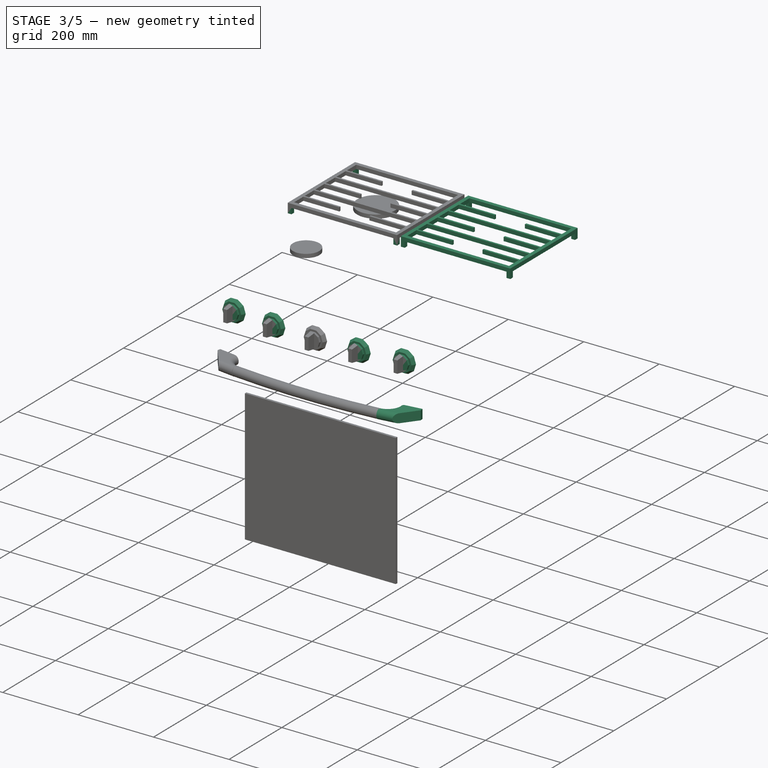
[diagram: stage 3 of 5 — iso view after this stage's code; geometry added in this stage tinted green]
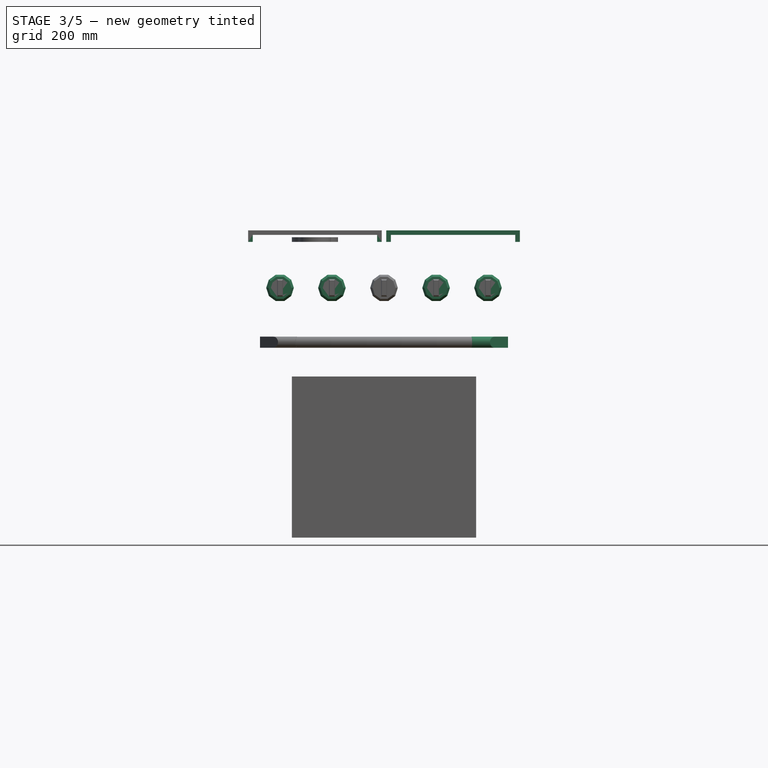
[diagram: stage 3 of 5 — front view after this stage's code; geometry added in this stage tinted green]
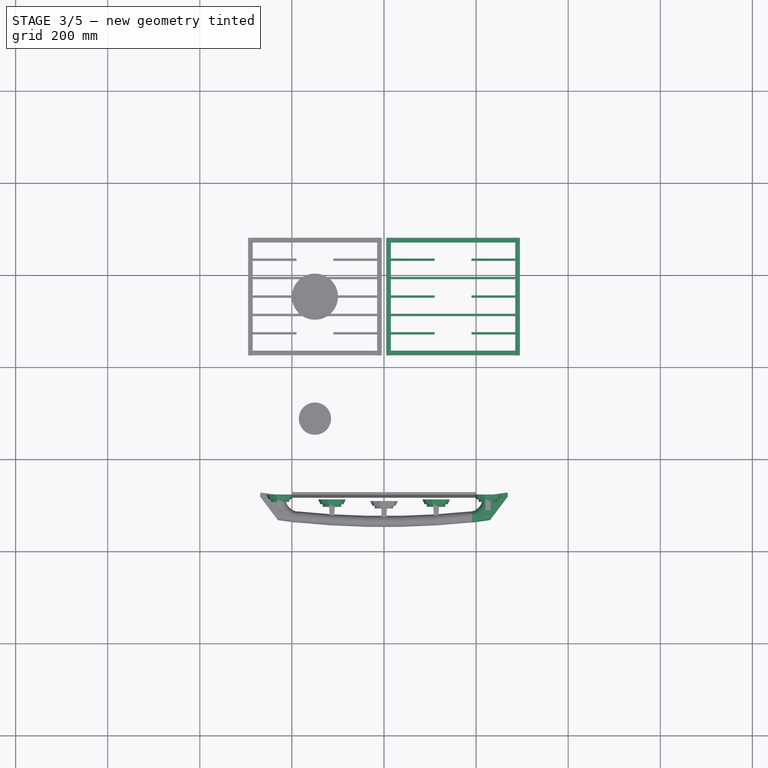
[diagram: stage 3 of 5 — top view after this stage's code; geometry added in this stage tinted green]
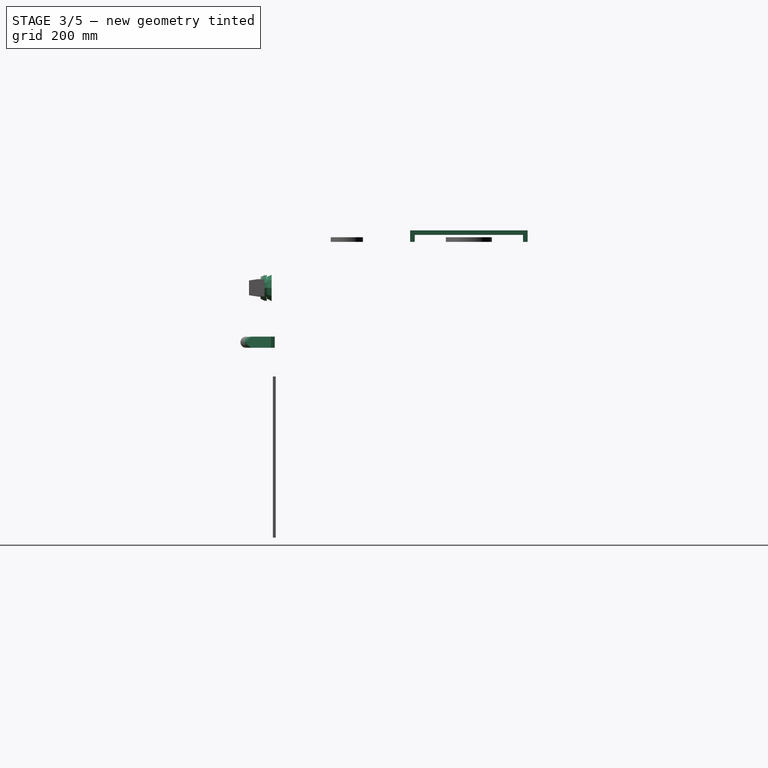
[diagram: stage 3 of 5 — right view after this stage's code; geometry added in this stage tinted green]
FEATURE [Sketcher::SketchObject] Sketch1131  label="Sketch1131_Path_Grates_depth"
  FullyConstrained = true
  MapMode = 2
  Support = -> [Sketch022]
  expr: .Constraints.Depth = (Prop.Base_dimensions_B_Depth - Prop.Rear_panel_B_Thickness - Prop.Front_panels_B_Thickness - Prop.Front_panels_B_Gap_between_panels) / 2
  sketch-geometry (1):
    g0: LineSegment StartX=0 StartY=0 StartZ=0 EndX=0 EndY=-265 EndZ=0
  constraints (3):
    c: Coincident(g0,g-1)
    c: Vertical(g0)
    c: DistanceY(g0,g0) = 265  'Depth'
FEATURE [Sketcher::SketchObject] Sketch1132
  AttachmentOffset = pos=(-150,0,900) rot=(0,0,1;0rad)
  ExternalGeometry = -> [Sketch022]
  FullyConstrained = false
  MapMode = 2
  Placement = pos=(-150,0,900) rot=(0,0,1;0rad)
  Support = -> [Sketch022]
  expr: .AttachmentOffset.Base.x = -Prop.Base_dimensions_B_Width / 2 + Prop.Base_dimensions_B_Width / (Prop.Burnes_B_Number_burnes_lines < +1 ? 1 : Prop.Burnes_B_Number_burnes_lines) / 2
  expr: .AttachmentOffset.Base.z = Prop.Base_dimensions_B_Height
  expr: .Constraints.Depth = (Prop.Base_dimensions_B_Depth - Prop.Rear_panel_B_Thickness - Prop.Front_panels_B_Thickness - Prop.Front_panels_B_Gap_between_panels) / 2 - 10 mm
  expr: .Constraints.Retreat = Prop.Rear_panel_B_Thickness + (Prop.Base_dimensions_B_Depth - Prop.Rear_panel_B_Thickness - Prop.Front_panels_B_Thickness - Prop.Front_panels_B_Gap_between_panels) / 4
  expr: .Constraints.Width = Prop.Base_dimensions_B_Width / (Prop.Burnes_B_Number_burnes_lines <= 1 ? 1 : Prop.Burnes_B_Number_burnes_lines) - 10 mm
  sketch-geometry (26):
    g0: LineSegment StartX=-145 StartY=270 StartZ=0 EndX=145 EndY=270 EndZ=0
    g1: LineSegment StartX=145 StartY=15 StartZ=0 EndX=-145 EndY=15 EndZ=0
    g2: LineSegment StartX=-145 StartY=15 StartZ=0 EndX=-145 EndY=270 EndZ=0
    g3: LineSegment StartX=0 StartY=142.5 StartZ=0 EndX=0 EndY=-142.5 EndZ=0
    g4: LineSegment StartX=-224.462 StartY=142.5 StartZ=0 EndX=185.195 EndY=142.5 EndZ=0
    g5: LineSegment StartX=145 StartY=270 StartZ=0 EndX=145 EndY=15 EndZ=0
    g6: LineSegment StartX=-135 StartY=260 StartZ=0 EndX=135 EndY=260 EndZ=0
    g7: LineSegment StartX=135 StartY=260 StartZ=0 EndX=135 EndY=25 EndZ=0
    g8: LineSegment StartX=135 StartY=25 StartZ=0 EndX=-135 EndY=25 EndZ=0
    g9: LineSegment StartX=-135 StartY=25 StartZ=0 EndX=-135 EndY=260 EndZ=0
    g10: LineSegment StartX=-145 StartY=270 StartZ=0 EndX=-135 EndY=270 EndZ=0
    g11: LineSegment StartX=-135 StartY=270 StartZ=0 EndX=-135 EndY=260 EndZ=0
    g12: LineSegment StartX=-135 StartY=260 StartZ=0 EndX=-145 EndY=260 EndZ=0
    g13: LineSegment StartX=-145 StartY=260 StartZ=0 EndX=-145 EndY=270 EndZ=0
    g14: LineSegment StartX=135 StartY=260 StartZ=0 EndX=145 EndY=260 EndZ=0
    g15: LineSegment StartX=145 StartY=260 StartZ=0 EndX=145 EndY=270 EndZ=0
    g16: LineSegment StartX=145 StartY=270 StartZ=0 EndX=135 EndY=270 EndZ=0
    g17: LineSegment StartX=135 StartY=270 StartZ=0 EndX=135 EndY=260 EndZ=0
    g18: LineSegment StartX=-145 StartY=15 StartZ=0 EndX=-135 EndY=15 EndZ=0
    g19: LineSegment StartX=-135 StartY=15 StartZ=0 EndX=-135 EndY=25 EndZ=0
    g20: LineSegment StartX=-135 StartY=25 StartZ=0 EndX=-145 EndY=25 EndZ=0
    g21: LineSegment StartX=-145 StartY=25 StartZ=0 EndX=-145 EndY=15 EndZ=0
    g22: LineSegment StartX=135 StartY=25 StartZ=0 EndX=145 EndY=25 EndZ=0
    g23: LineSegment StartX=145 StartY=25 StartZ=0 EndX=145 EndY=15 EndZ=0
    g24: LineSegment StartX=145 StartY=15 StartZ=0 EndX=135 EndY=15 EndZ=0
    g25: LineSegment StartX=135 StartY=15 StartZ=0 EndX=135 EndY=25 EndZ=0
  constraints (65):
    c: Horizontal(g1)
    c: Vertical(g2)
    c: DistanceX(g0,g0) = 290  'Width'
    c: Symmetric(g0,g0,g-2)
    c: DistanceY(g1,g0) = 255  'Depth'
    c: PointOnObject(g3,g-2)
    c: PointOnObject(g3,g4)
    c: Symmetric(g3,g3,g-1)
    c: Vertical(g5)
    c: Coincident(g5,g1)
    c: Coincident(g0,g5)
    c: Coincident(g1,g2)
    c: Coincident(g2,g0)
    c: Symmetric(g0,g1,g4)
    c: Coincident(g6,g7)
    c: Coincident(g7,g8)
    c: Coincident(g8,g9)
    c: Coincident(g9,g6)
    c: Horizontal(g8)
    c: Vertical(g9)
    c: Coincident(g10,g11)
    c: Coincident(g11,g12)
    c: Coincident(g12,g13)
    c: Coincident(g13,g10)
    c: Horizontal(g10)
    c: Horizontal(g12)
    c: Vertical(g11)
    c: Vertical(g13)
    c: Coincident(g10,g0)
    c: Coincident(g11,g6)
    c: Coincident(g14,g15)
    c: Coincident(g15,g16)
    c: Coincident(g16,g17)
    c: Coincident(g17,g14)
    c: Horizontal(g14)
    c: Horizontal(g16)
    c: Vertical(g15)
    c: Vertical(g17)
    c: Coincident(g14,g6)
    c: Coincident(g15,g0)
    c: Coincident(g18,g19)
    c: Coincident(g19,g20)
    c: Coincident(g20,g21)
    c: Coincident(g21,g18)
    c: Horizontal(g18)
    c: Horizontal(g20)
    c: Vertical(g19)
    c: Vertical(g21)
    c: Coincident(g18,g1)
    c: Coincident(g19,g8)
    c: Coincident(g22,g23)
    c: Coincident(g23,g24)
    c: Coincident(g24,g25)
    c: Coincident(g25,g22)
    c: Horizontal(g22)
    c: Horizontal(g24)
    c: Vertical(g23)
    c: Vertical(g25)
    c: Coincident(g22,g7)
    c: Coincident(g23,g1)
    c: Symmetric(g11,g14,g-2)
    c: Symmetric(g14,g22,g4)
    c: DistanceY(g11,g11) = 10
    c: DistanceX(g12,g12) = 10
    c: DistanceY(g4,g-4) = 157.5  'Retreat'
FEATURE [Part::Extrusion] Extrude084143233  label="Extrude084143237"
  Base = -> Sketch1132
  Dir = (0,0,1)
  DirMode = 2
  FaceMakerClass = Part::FaceMakerBullseye
  LengthFwd = 15
  LengthRev = 0
  Solid = true
  Symmetric = false
FEATURE [Part::MultiFuse] Fusion  label="Grate"
  Refine = true
  Shapes = -> [Extrude084143232,Extrude084143233]
FEATURE [Part::FeaturePython] PathArray001  label="Grates_"  # WARN: FeaturePython — macro-defined, semantics opaque (R4)
  Align = false
  AlignMode = 0
  Base = -> Fusion
  Count = 2
  EndOffset = 0
  ExtraTranslation = (0,0,0)
  ForceVertical = false
  PathObject = -> Sketch1129
  StartOffset = 0
  TangentVector = (1,0,0)
  VerticalVector = (0,0,1)
  expr: .ExtraTranslation.x = -Sketch022.Placement.Base.x
  expr: .ExtraTranslation.y = -Sketch022.Placement.Base.y
  expr: .ExtraTranslation.z = -Sketch022.Placement.Base.z
  expr: Count = Prop.Burnes_B_Number_burnes_lines <= 1 ? 1 : Prop.Burnes_B_Number_burnes_lines
FEATURE [Part::FeaturePython] PathArray003  label="03-Knobs_base"  # WARN: FeaturePython — macro-defined, semantics opaque (R4)
  Align = false
  AlignMode = 0
  Base = -> Fusion001
  Count = 5
  EndOffset = 75
  ExtraTranslation = (0,0,0)
  ForceVertical = true
  Material = -> Material014
  PathObject = -> Sketch1133
  StartOffset = 75
  TangentVector = (1,0,0)
  VerticalVector = (0,0,1)
  expr: .ExtraTranslation.x = -Sketch022.Placement.Base.x
  expr: .ExtraTranslation.y = -Sketch022.Placement.Base.y
  expr: .ExtraTranslation.z = -Sketch022.Placement.Base.z
  expr: Count = (Prop.Burnes_B_Number_burnes_lines <= 1 ? 1 : Prop.Burnes_B_Number_burnes_lines) * 2 + 1
  expr: Material = Prop.Knobs_finishes_C_Knobs_base_material
  expr: Visibility = Prop.Visualization_A_Visualization
FEATURE [Sketcher::SketchObject] Sketch1136
  AttachmentOffset = pos=(184,-291,670) rot=(0,0,1;0.139626rad)
  FullyConstrained = true
  MapMode = 2
  Placement = pos=(184,-291,670) rot=(0,0,1;0.139626rad)
  Support = -> [Sketch022]
  expr: .AttachmentOffset.Base.x = Prop.Base_dimensions_B_Width / 2 - 116 mm
  expr: .AttachmentOffset.Base.y = -Prop.Base_dimensions_B_Depth / 2 + 9 mm
  expr: .AttachmentOffset.Base.z = Prop.Feet_B_Height + Prop.Front_panels_B_Ash_panel_height + Prop.Front_panels_B_Gap_between_panels + Prop.Front_panels_B_Front_door_height - 50 mm
  sketch-geometry (6):
    g0: LineSegment StartX=-5.5e-15 StartY=-30 StartZ=0 EndX=-5.5e-15 EndY=-54 EndZ=0
    g1: LineSegment StartX=-5.5e-15 StartY=-54 StartZ=0 EndX=39 EndY=-54 EndZ=0
    g2: LineSegment StartX=39 StartY=-54 StartZ=0 EndX=85 EndY=-8 EndZ=0
    g3: LineSegment StartX=85 StartY=-8 StartZ=0 EndX=85 EndY=-7.1e-15 EndZ=0
    g4: LineSegment StartX=85 StartY=-7.3e-15 StartZ=0 EndX=30 EndY=-7.3e-15 EndZ=0
    g5: ArcOfCircle CenterX=0 CenterY=0 CenterZ=0 NormalX=0 NormalY=0 NormalZ=1 AngleXU=0 Radius=30 StartAngle=4.71239 EndAngle=6.28319
  constraints (19):
    c: Vertical(g0)
    c: Coincident(g0,g1)
    c: Horizontal(g1)
    c: Coincident(g1,g2)
    c: Coincident(g2,g3)
    c: Coincident(g3,g4)
    c: Horizontal(g4)
    c: Coincident(g5,g0)
    c: Coincident(g5,g4)
    c: Vertical(g3)
    c: Angle(g2,g1) = 2.35619
    c: Perpendicular(g5,g4)
    c: Perpendicular(g5,g0)
    c: Distance(g0) = 24
    c: Distance(g1) = 39
    c: Coincident(g5,g-1)
    c: Radius(g5) = 30
    c: DistanceY(g0,g5) = 54  'Depth'
    c: DistanceX(g5,g3) = 85  'Length'
FEATURE [Part::Extrusion] Extrude084143235  label="Extremity_002"
  Base = -> Sketch1136
  Dir = (0,0,1)
  DirMode = 2
  FaceMakerClass = Part::FaceMakerBullseye
  LengthFwd = 24
  LengthRev = 0
  Solid = true
  Symmetric = false
FEATURE [Part::Fillet] Fillet015145  label="Extremity_003"
  Base = -> Extrude084143235
  Edges = 4 edges r=11.95: [Edge6,Edge7,Edge17,Edge18]
  Material = -> Material014
  expr: Material = Prop.Handle_C_Extremities_material
  expr: Visibility = Prop.Visualization_A_Visualization
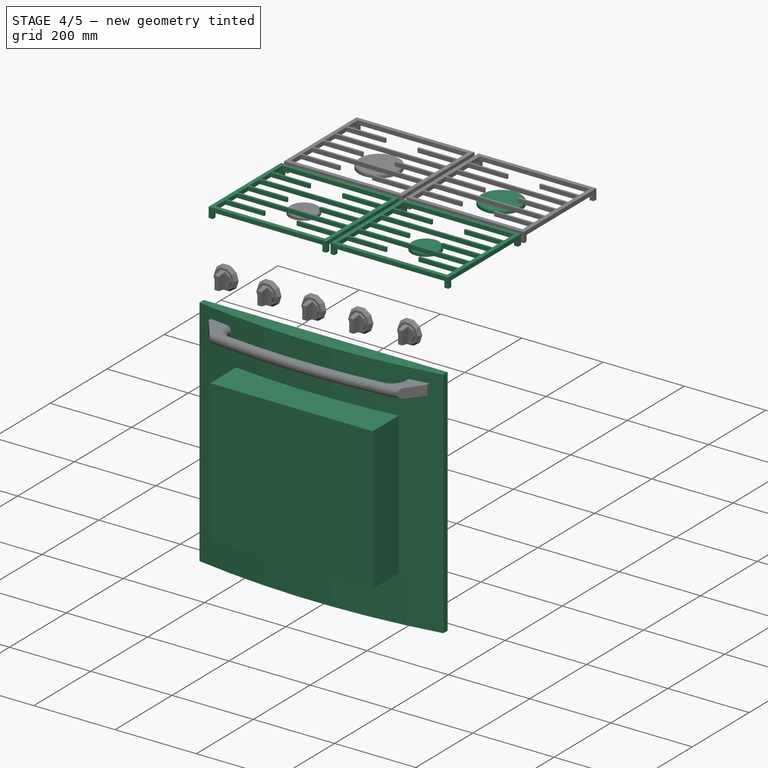
[diagram: stage 4 of 5 — iso view after this stage's code; geometry added in this stage tinted green]
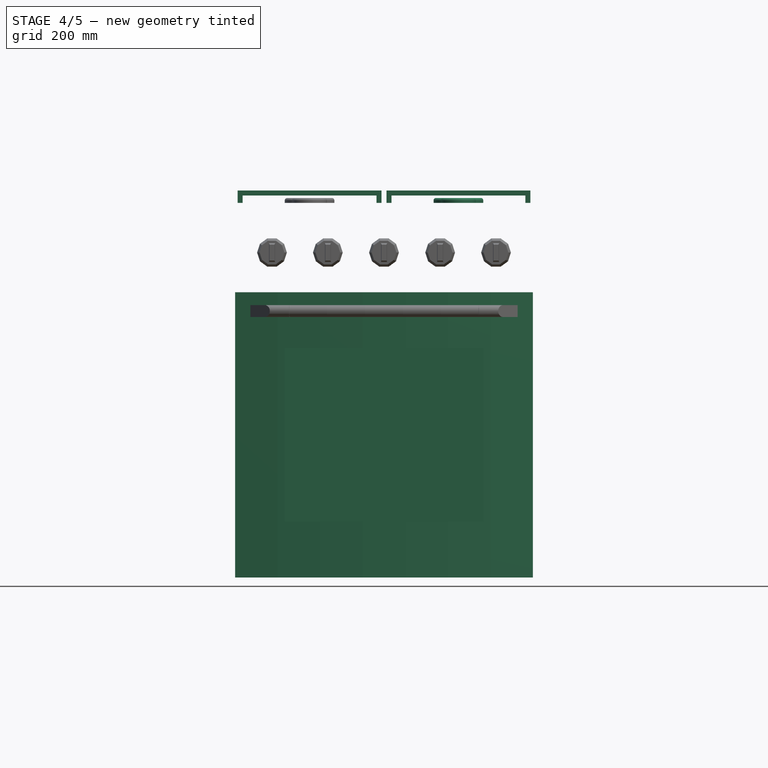
[diagram: stage 4 of 5 — front view after this stage's code; geometry added in this stage tinted green]
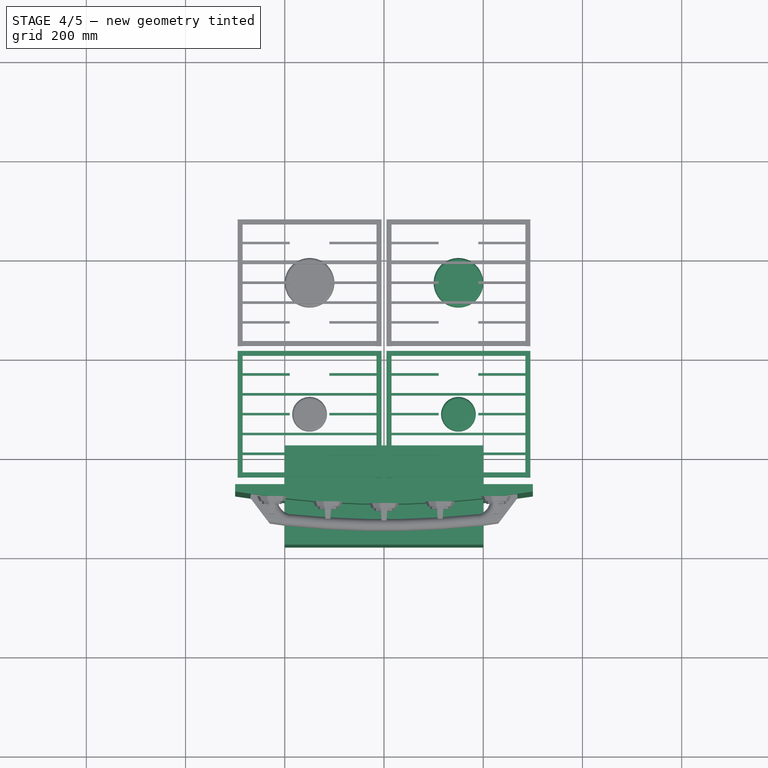
[diagram: stage 4 of 5 — top view after this stage's code; geometry added in this stage tinted green]
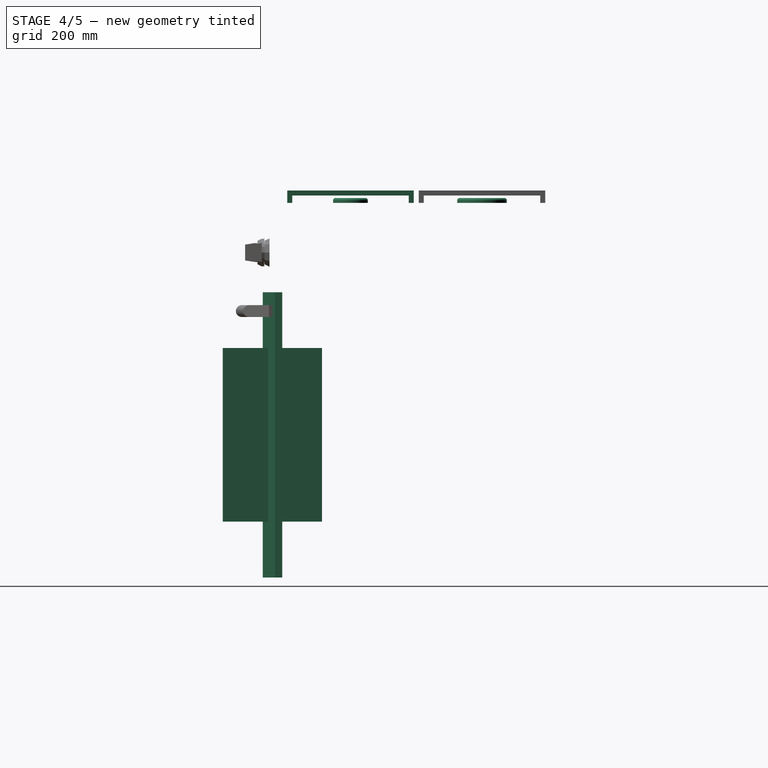
[diagram: stage 4 of 5 — right view after this stage's code; geometry added in this stage tinted green]
FEATURE [Part::Extrusion] Extrude002  label="03-Front_door_"
  Base = -> Sketch023
  Dir = (0,0,1)
  DirMode = 2
  FaceMakerClass = Part::FaceMakerBullseye
  LengthFwd = 575
  LengthRev = 0
  Placement = pos=(0,0,145) rot=(0,0,1;0rad)
  Solid = true
  Symmetric = false
  expr: .Placement.Base.z = Prop.Feet_B_Height + Prop.Front_panels_B_Ash_panel_height + Prop.Front_panels_B_Gap_between_panels
  expr: LengthFwd = Prop.Front_panels_B_Front_door_height
FEATURE [Sketcher::SketchObject] Sketch1126
  AttachmentOffset = pos=(0,257.5,280) rot=(0,0,1;0rad)
  FullyConstrained = true
  MapMode = 3
  Placement = pos=(0,-280,257.5) rot=(1,0,0;1.5708rad)
  Support = -> [Sketch022]
  expr: .AttachmentOffset.Base.y = Prop.Feet_B_Height + Prop.Front_panels_B_Ash_panel_height + Prop.Front_panels_B_Gap_between_panels + Prop.Front_panels_B_Front_door_height / 2 - Prop.Front_panels_B_Glass_window_height / 2
  expr: .AttachmentOffset.Base.z = Prop.Base_dimensions_B_Depth / 2 - Prop.Front_panels_B_Thickness / 2
  expr: .Constraints.Height = Prop.Front_panels_B_Glass_window_height
  expr: .Constraints.Width = Prop.Front_panels_B_Glass_window_width
  sketch-geometry (4):
    g0: LineSegment StartX=-200 StartY=350 StartZ=0 EndX=200 EndY=350 EndZ=0
    g1: LineSegment StartX=200 StartY=350 StartZ=0 EndX=200 EndY=0 EndZ=0
    g2: LineSegment StartX=200 StartY=0 StartZ=0 EndX=-200 EndY=0 EndZ=0
    g3: LineSegment StartX=-200 StartY=0 StartZ=0 EndX=-200 EndY=350 EndZ=0
  constraints (11):
    c: Coincident(g0,g1)
    c: Coincident(g1,g2)
    c: Coincident(g2,g3)
    c: Coincident(g3,g0)
    c: Horizontal(g2)
    c: Vertical(g1)
    c: Vertical(g3)
    c: DistanceX(g0,g0) = 400  'Width'
    c: DistanceY(g1,g1) = 350  'Height'
    c: Symmetric(g0,g0,g-2)
    c: PointOnObject(g1,g-1)
FEATURE [Part::Extrusion] Extrude084143228  label="Extrude084143235"
  Base = -> Sketch1126
  Dir = (0,-1,2e-16)
  DirMode = 2
  FaceMakerClass = Part::FaceMakerBullseye
  LengthFwd = 200
  LengthRev = 0
  Solid = true
  Symmetric = true
FEATURE [Part::Fillet] Fillet
  Base = -> Extrude084143231
  Edges = 2 edges r=5: [Edge3,Edge6]
FEATURE [Part::FeaturePython] PathArray  label="03-Burnes_"  # WARN: FeaturePython — macro-defined, semantics opaque (R4)
  Align = false
  AlignMode = 0
  Base = -> Fillet
  Count = 2
  EndOffset = 0
  ExtraTranslation = (0,0,0)
  ForceVertical = false
  Material = -> Material014
  PathObject = -> Sketch1129
  StartOffset = 0
  TangentVector = (1,0,0)
  VerticalVector = (0,0,1)
  expr: .ExtraTranslation.x = -Sketch022.Placement.Base.x
  expr: .ExtraTranslation.y = -Sketch022.Placement.Base.y
  expr: .ExtraTranslation.z = -Sketch022.Placement.Base.z
  expr: Count = Prop.Burnes_B_Number_burnes_lines <= 1 ? 1 : Prop.Burnes_B_Number_burnes_lines
  expr: Material = Prop.Burnes_B_Material
  expr: Visibility = Prop.Visualization_A_Visualization
FEATURE [Sketcher::SketchObject] Sketch1137
  AttachmentOffset = pos=(342,670,0) rot=(0,0,1;0rad)
  FullyConstrained = true
  MapMode = 4
  Placement = pos=(0,-342,670) rot=(0.57735,-0.57735,-0.57735;2.0944rad)
  Support = -> [Sketch022]
  expr: .AttachmentOffset.Base.x = Prop.Base_dimensions_B_Depth / 2 + 42 mm
  expr: .AttachmentOffset.Base.y = Prop.Feet_B_Height + Prop.Front_panels_B_Ash_panel_height + Prop.Front_panels_B_Gap_between_panels + Prop.Front_panels_B_Front_door_height - 50 mm
  sketch-geometry (1):
    g0: Circle CenterX=0 CenterY=12 CenterZ=0 NormalX=0 NormalY=0 NormalZ=1 AngleXU=0 Radius=12
  constraints (3):
    c: Radius(g0) = 12  'Radius'
    c: PointOnObject(g0,g-2)
    c: PointOnObject(g-1,g0)
FEATURE [App::DocumentObjectGroup] Group248  label="02-Front_panels"
  Group = -> [Extrude001,Cut,Extrude084143229,Extrude084143227]
FEATURE [App::DocumentObjectGroup] Group250  label="03-Knobs_"
  Group = -> [PathArray003,PathArray004]
FEATURE [App::MaterialObjectPython] Material043  label="cast iron"  # material (typed FeaturePython)
  Description = Matte Material for Render
  Material = Color=(0.8, 0.8, 0.8, 1.0); Description=Matte Material for Render; DiffuseColor=(0.8, 0.8, 0.8, 1.0); Name=cast iron; Render.Diffuse.Color=(0.12941176470588237,0.12941176470588237,0.12941176470588237); Render.ForceUVMap=False; Render.Type=Diffuse; SectionColor=(0.8, 0.8, 0.8, 1.0); Transparency=0; UseObjectColor=True; ViewColor=(0.8, 0.8, 0.8, 1.0)
  Transparency = 0
FEATURE [App::DocumentObjectGroup] Group229  label="Metal_"
  Group = -> [Material,Material042,Material043]
FEATURE [App::DocumentObjectGroupPython] MaterialContainer  label="02-Materials"  # scripted group (container) (typed FeaturePython)
  Group = -> [Group230,Group229,Group228]
FEATURE [Part::FeaturePython] PathArray002  label="03-Grates_001"  # WARN: FeaturePython — macro-defined, semantics opaque (R4)
  Align = false
  AlignMode = 0
  Base = -> PathArray001
  Count = 2
  EndOffset = 0
  ExtraTranslation = (0,0,0)
  ForceVertical = false
  Material = -> Material043
  PathObject = -> Sketch1131
  StartOffset = 0
  TangentVector = (1,0,0)
  VerticalVector = (0,0,1)
  expr: .ExtraTranslation.x = -Sketch022.Placement.Base.x
  expr: .ExtraTranslation.y = -Sketch022.Placement.Base.y
  expr: .ExtraTranslation.z = -Sketch022.Placement.Base.z
  expr: Material = Prop.Grates_C_Material
  expr: Visibility = Prop.Visualization_A_Visualization
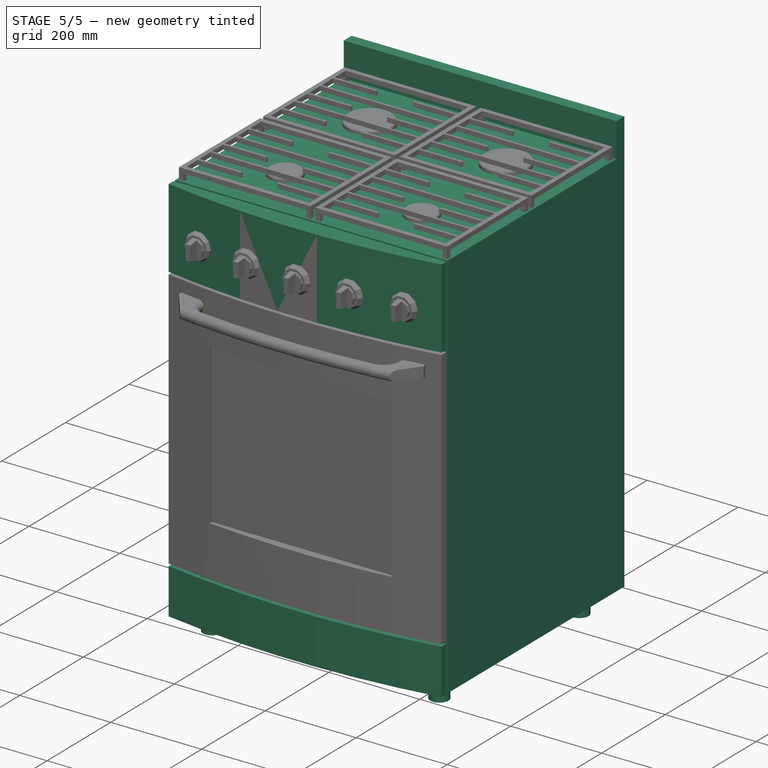
[diagram: stage 5 of 5 — iso view after this stage's code; geometry added in this stage tinted green]
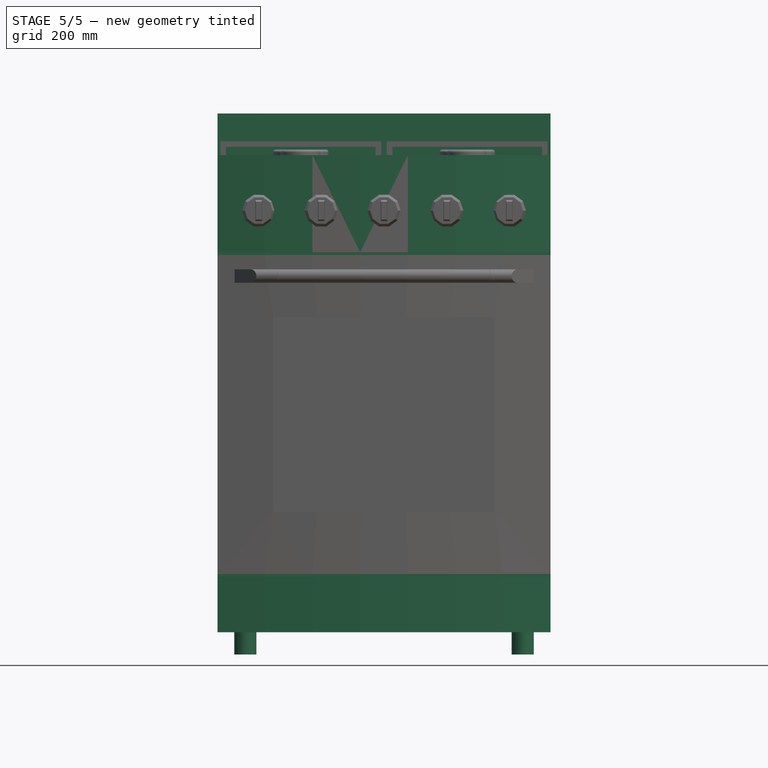
[diagram: stage 5 of 5 — front view after this stage's code; geometry added in this stage tinted green]
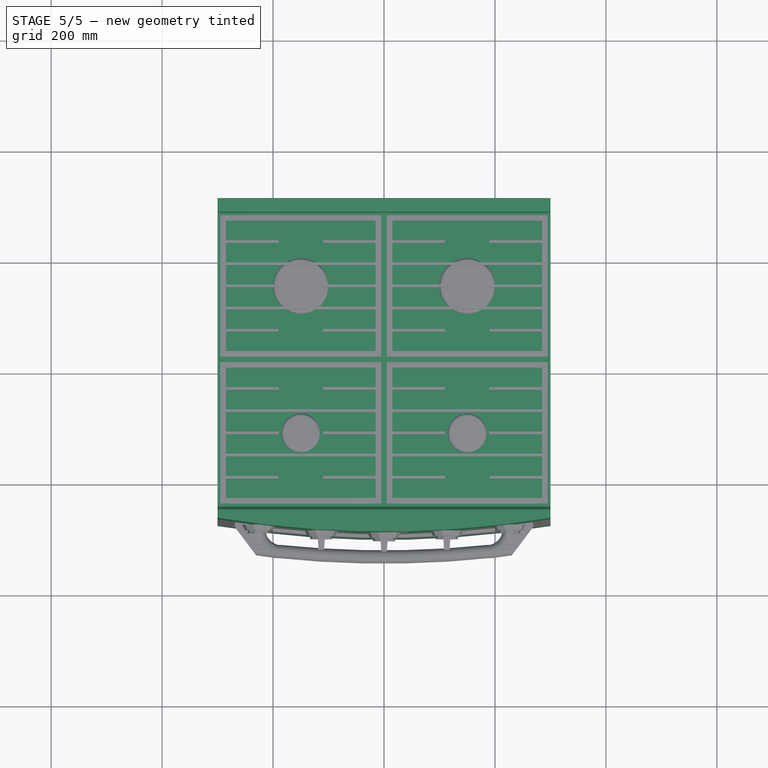
[diagram: stage 5 of 5 — top view after this stage's code; geometry added in this stage tinted green]
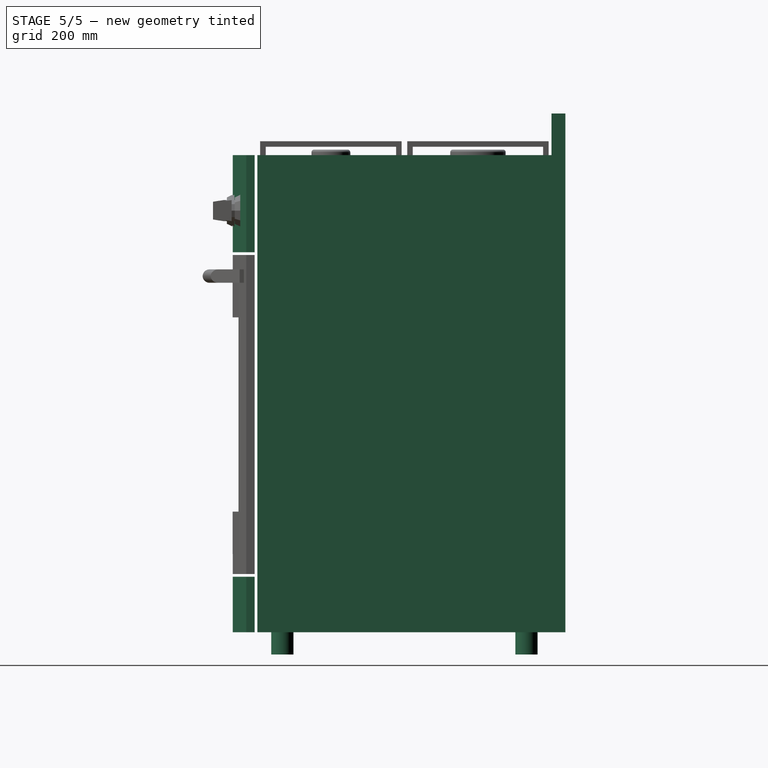
[diagram: stage 5 of 5 — right view after this stage's code; geometry added in this stage tinted green]
FEATURE [App::MaterialObjectPython] Material  label="aluminium"  # material (typed FeaturePython)
  Description = Aluminium Material for Render
  Material = <blob: 2719 chars omitted>
  Transparency = 0
FEATURE [App::MaterialObjectPython] Material022  label="glass"  # material (typed FeaturePython)
  Description = Glass Material for Render
  Material = Color=(0.8, 0.8, 0.8, 1.0); Description=Glass Material for Render; DiffuseColor=(0.8, 0.8, 0.8, 1.0); Name=glass; Render.ForceUVMap=False; Render.Glass.Color=(1.0,1.0,1.0); Render.Glass.IOR=1.7; Render.Type=Glass; SectionColor=(0.8, 0.8, 0.8, 1.0); Transparency=0; UseObjectColor=True; ViewColor=(0.8, 0.8, 0.8, 1.0)
  Transparency = 0
FEATURE [App::MaterialObjectPython] Material037  label="black temperate glass"  # material (typed FeaturePython)
  Description = Glass Material for Render
  Material = Color=(0.8, 0.8, 0.8, 1.0); Description=Glass Material for Render; DiffuseColor=(0.8, 0.8, 0.8, 1.0); Name=black temperate glass; Render.ForceUVMap=False; Render.Glass.Color=(0.8745098039215686,0.8745098039215686,0.8745098039215686); Render.Glass.IOR=1.8; Render.Mixed.Diffuse.Color=(1.0,1.0,1.0); Render.Mixed.Glass.Color=(1.0,1.0,1.0); Render.Mixed.Glass.IOR=2.0; Render.Mixed.Transparency=0.85; Render.Type=Glass; SectionColor=(0.8, 0.8, 0.8, 1.0); Transparency=0; UseObjectColor=True; ViewColor=(0.8, 0.8, 0.8, 1.0)
  Transparency = 0
FEATURE [App::DocumentObjectGroup] Group230  label="Glass_"
  Group = -> [Material022,Material037]
FEATURE [App::MaterialObjectPython] Material042  label="stainless steel"  # material (typed FeaturePython)
  Description = Iron Material for Render
  Material = Color=(0.7686274509803922, 0.7803921568627451, 0.7803921568627451, 1.0); Description=Iron Material for Render; DiffuseColor=(0.7686274509803922, 0.7803921568627451, 0.7803921568627451, 1.0); Name=stainless steel; Render.Disney.Anisotropic=0.0; Render.Disney.BaseColor=(0.77, 0.78, 0.78); Render.Disney.ClearCoat=0.0; Render.Disney.ClearCoatGloss=0.0; Render.Disney.Metallic=1.0; Render.Disney.Roughness=0.3; Render.Disney.Sheen=0.0; Render.Disney.SheenTint=0.0; Render.Disney.Specular=0.0; Render.Disney.SpecularTint=0.0; Render.Disney.Subsurface=0.0; Render.Ospray.0001=type metal; Render.Ospray.0002=# from refractiveindex.info, for wl 700, 550, 450; Render.Ospray.0003=eta 2.8653 2.9497 2.5845; Render.Ospray.0004=k 3.1820 2.9318 2.7670; Render.Ospray.0005=roughness 0.1; Render.Pbrt.0001=Material "conductor"; Render.Pbrt.0002="spectrum eta" [ "metal-Ag-eta" ]; Render.Pbrt.0003="spectrum k" [ "metal-Ag-k" ]; Render.Pbrt.0004="float roughness" [ 0.01 ]; Render.Povray.0001=finish {; Render.Povray.0002=brilliance 4; Render.Povray.0003=diffuse 0; Render.Povray.0004=ambient <0.77 0.78 0.78>; Render.Povray.0005=reflection <0.77 0.78 0.78>; Render.Povray.0006=metallic 1; Render.Povray.0007=specular 0.60; Render.Povray.0008=roughness 1/20; Render.Povray.0009=}; Render.Type=Disney; SectionColor=(0.7686274509803922, 0.7803921568627451, 0.7803921568627451, 1.0); Transparency=0; UseObjectColor=False; ViewColor=(0.7686274509803922, 0.7803921568627451, 0.7803921568627451, 1.0)
  Transparency = 0
FEATURE [Sketcher::SketchObject] Sketch022  label="Stove_base_move_rotate_#_"
  FullyConstrained = true
  expr: .Constraints.Depth = Prop.Base_dimensions_B_Depth
  expr: .Constraints.Width = Prop.Base_dimensions_B_Width
  expr: Constraints[33] = Prop.Front_panels_B_Thickness
  sketch-geometry (12):
    g0: LineSegment StartX=-300 StartY=300 StartZ=0 EndX=300 EndY=300 EndZ=0
    g1: LineSegment StartX=300 StartY=300 StartZ=0 EndX=300 EndY=-300 EndZ=0
    g2: LineSegment StartX=300 StartY=-300 StartZ=0 EndX=-300 EndY=-300 EndZ=0
    g3: LineSegment StartX=-300 StartY=-300 StartZ=0 EndX=-300 EndY=300 EndZ=0
    g4: LineSegment StartX=-400 StartY=400 StartZ=0 EndX=400 EndY=400 EndZ=0
    g5: LineSegment StartX=400 StartY=400 StartZ=0 EndX=400 EndY=-400 EndZ=0
    g6: LineSegment StartX=400 StartY=-400 StartZ=0 EndX=-400 EndY=-400 EndZ=0
    g7: LineSegment StartX=-400 StartY=-400 StartZ=0 EndX=-400 EndY=400 EndZ=0
    g8: LineSegment StartX=-400 StartY=0 StartZ=0 EndX=400 EndY=0 EndZ=0
    g9: LineSegment StartX=0 StartY=400 StartZ=0 EndX=0 EndY=-400 EndZ=0
    g10: Circle CenterX=0 CenterY=0 CenterZ=0 NormalX=0 NormalY=0 NormalZ=1 AngleXU=0 Radius=50
    g11: LineSegment StartX=-300 StartY=-260 StartZ=0 EndX=300 EndY=-260 EndZ=0
  constraints (34):
    c: Coincident(g0,g1)
    c: Coincident(g1,g2)
    c: Coincident(g2,g3)
    c: Coincident(g3,g0)
    c: Horizontal(g2)
    c: Vertical(g1)
    c: DistanceX(g2,g2) = 600  'Width'
    c: DistanceY(g3,g3) = 600  'Depth'
    c: Symmetric(g0,g0,g-2)
    c: Symmetric(g0,g2,g-1)
    c: Coincident(g4,g5)
    c: Coincident(g5,g6)
    c: Coincident(g6,g7)
    c: Coincident(g7,g4)
    c: Horizontal(g6)
    c: Vertical(g7)
    c: Symmetric(g4,g4,g-2)
    c: Symmetric(g4,g5,g-1)
    c: DistanceX(g0,g4) = 100
    c: DistanceY(g0,g4) = 100
    c: PointOnObject(g8,g7)
    c: PointOnObject(g8,g5)
    c: Horizontal(g8)
    c: PointOnObject(g9,g4)
    c: PointOnObject(g9,g6)
    c: Vertical(g9)
    c: PointOnObject(g9,g-2)
    c: PointOnObject(g8,g-1)
    c: Coincident(g10,g-1)
    c: Diameter(g10) = 100
    c: PointOnObject(g11,g3)
    c: PointOnObject(g11,g1)
    c: Horizontal(g11)
    c: DistanceY(g1,g11) = 40
FEATURE [App::FeaturePython] Texture011  # WARN: FeaturePython — macro-defined, semantics opaque (R4)
  Rotation = 0
  TranslationU = 0
  TranslationV = 0
FEATURE [App::MaterialObjectPython] Material014  label="black anodized aluminum"  # material (typed FeaturePython)
  Group = -> [Texture011]
  Material = Name=black anodized aluminum; Render.Disney.Anisotropic=0.0; Render.Disney.BaseColor=0.00784314, 0.00784314, 0.00784314; Render.Disney.ClearCoat=0.0; Render.Disney.ClearCoatGloss=0.8980392217636108; Render.Disney.Metallic=0.0; Render.Disney.Normal=Texture;('Texture011', 'Image', 1.0); Render.Disney.Roughness=0.09803921729326248; Render.Disney.Sheen=0.0; Render.Disney.SheenTint=0.0; Render.Disney.Specular=0.501960813999176; Render.Disney.SpecularTint=0.0; Render.Disney.Subsurface=0.0; Render.Type=Disney; SectionColor=(0.0, 0.0, 0.0); Transparency=0
  Transparency = 0
FEATURE [App::DocumentObjectGroup] Group228  label="Plastic"
  Group = -> [Material014]
FEATURE [Sketcher::SketchObject] Sketch  label="Body_"
  AttachmentOffset = pos=(0,0,40) rot=(0,0,1;0rad)
  ExternalGeometry = -> [Sketch022]
  FullyConstrained = true
  MapMode = 2
  Placement = pos=(0,0,40) rot=(0,0,1;0rad)
  Support = -> [Sketch022]
  expr: .AttachmentOffset.Base.z = Prop.Feet_B_Height
  expr: .Constraints.Retreat = Prop.Front_panels_B_Thickness + 5 mm
  sketch-geometry (4):
    g0: LineSegment StartX=-300 StartY=300 StartZ=0 EndX=300 EndY=300 EndZ=0
    g1: LineSegment StartX=300 StartY=300 StartZ=0 EndX=300 EndY=-255 EndZ=0
    g2: LineSegment StartX=300 StartY=-255 StartZ=0 EndX=-300 EndY=-255 EndZ=0
    g3: LineSegment StartX=-300 StartY=-255 StartZ=0 EndX=-300 EndY=300 EndZ=0
  constraints (11):
    c: Coincident(g0,g1)
    c: Coincident(g1,g2)
    c: Coincident(g2,g3)
    c: Coincident(g3,g0)
    c: Horizontal(g2)
    c: Vertical(g1)
    c: Vertical(g3)
    c: Horizontal(g0)
    c: PointOnObject(g0,g-3)
    c: Coincident(g0,g-4)
    c: DistanceY(g-4,g1) = 45  'Retreat'
FEATURE [Part::Extrusion] Extrude  label="01-Body_"
  Base = -> Sketch
  Dir = (0,0,1)
  DirMode = 2
  FaceMakerClass = Part::FaceMakerBullseye
  LengthFwd = 860
  LengthRev = 0
  Material = -> Material042
  Solid = true
  Symmetric = false
  expr: LengthFwd = Prop.Base_dimensions_B_Height - Prop.Feet_B_Height
  expr: Material = Prop.Body_C_Material
  expr: Visibility = Prop.Visualization_A_Visualization
FEATURE [Sketcher::SketchObject] Sketch023
  ExternalGeometry = -> [Sketch022]
  FullyConstrained = true
  MapMode = 2
  Support = -> [Sketch022]
  expr: .Constraints.Thickness = Prop.Front_panels_B_Thickness
  sketch-geometry (7):
    g0: LineSegment StartX=-300 StartY=-300 StartZ=0 EndX=300 EndY=-300 EndZ=0
    g1: LineSegment StartX=300 StartY=-300 StartZ=0 EndX=300 EndY=-260 EndZ=0
    g2: LineSegment StartX=300 StartY=-260 StartZ=0 EndX=-300 EndY=-260 EndZ=0
    g3: LineSegment StartX=-300 StartY=-260 StartZ=0 EndX=-300 EndY=-300 EndZ=0
    g4: ArcOfCircle CenterX=0 CenterY=1512.5 CenterZ=0 NormalX=0 NormalY=0 NormalZ=1 AngleXU=0 Radius=1812.5 StartAngle=4.54611 EndAngle=4.87867
    g5: LineSegment StartX=-300 StartY=-275 StartZ=0 EndX=-300 EndY=-260 EndZ=0
    g6: LineSegment StartX=300 StartY=-275 StartZ=0 EndX=300 EndY=-260 EndZ=0
  constraints (21):
    c: Coincident(g0,g1)
    c: Coincident(g1,g2)
    c: Coincident(g2,g3)
    c: Coincident(g3,g0)
    c: Horizontal(g0)
    c: Horizontal(g2)
    c: Vertical(g1)
    c: Vertical(g3)
    c: Coincident(g0,g-3)
    c: PointOnObject(g1,g-4)
    c: DistanceY(g1,g1) = 40  'Thickness'
    c: PointOnObject(g4,g-2)
    c: PointOnObject(g4,g3)
    c: PointOnObject(g4,g1)
    c: DistanceY(g4,g2) = 15
    c: Tangent(g0,g4)
    c: Coincident(g5,g4)
    c: Coincident(g5,g2)
    c: Coincident(g6,g4)
    c: Coincident(g6,g2)
    c: Radius(g4) = 1812.5  'Radius_reference'
FEATURE [Part::Extrusion] Extrude001  label="02-Ash_door"
  Base = -> Sketch023
  Dir = (0,0,1)
  DirMode = 2
  FaceMakerClass = Part::FaceMakerBullseye
  LengthFwd = 100
  LengthRev = 0
  Material = -> Material042
  Placement = pos=(0,0,40) rot=(0,0,1;0rad)
  Solid = true
  Symmetric = false
  expr: .Placement.Base.z = Prop.Feet_B_Height
  expr: LengthFwd = Prop.Front_panels_B_Ash_panel_height
  expr: Material = Prop.Front_panels_C_Ash_panel_material
  expr: Visibility = Prop.Visualization_A_Visualization
FEATURE [Sketcher::SketchObject] Sketch024
  ExternalGeometry = -> [Sketch022]
  FullyConstrained = true
  MapMode = 2
  Support = -> [Sketch022]
  expr: .Constraints.Radius = Prop.Feet_B_Radius
  sketch-geometry (4):
    g0: Circle CenterX=-250 CenterY=230 CenterZ=0 NormalX=0 NormalY=0 NormalZ=1 AngleXU=0 Radius=20
    g1: Circle CenterX=-250 CenterY=-210 CenterZ=0 NormalX=0 NormalY=0 NormalZ=1 AngleXU=0 Radius=20
    g2: Circle CenterX=250 CenterY=-210 CenterZ=0 NormalX=0 NormalY=0 NormalZ=1 AngleXU=0 Radius=20
    g3: Circle CenterX=250 CenterY=230 CenterZ=0 NormalX=0 NormalY=0 NormalZ=1 AngleXU=0 Radius=20
  constraints (12):
    c: Equal(g0,g3)
    c: Equal(g0,g2)
    c: Equal(g0,g1)
    c: Radius(g0) = 20  'Radius'
    c: Vertical(g0,g1)
    c: Horizontal(g0,g3)
    c: Vertical(g3,g2)
    c: Horizontal(g1,g2)
    c: DistanceX(g-3,g0) = 50
    c: DistanceY(g3,g-4) = 70
    c: DistanceY(g-3,g1) = 90
    c: DistanceX(g3,g-4) = 50
FEATURE [Part::Extrusion] Extrude003  label="05-Feet"
  Base = -> Sketch024
  Dir = (0,0,1)
  DirMode = 2
  FaceMakerClass = Part::FaceMakerBullseye
  LengthFwd = 40
  LengthRev = 0
  Material = -> Material014
  Solid = true
  Symmetric = false
  expr: LengthFwd = Prop.Feet_B_Height
  expr: Material = Prop.Feet_C_Material
  expr: Visibility = Prop.Visualization_A_Visualization
FEATURE [Spreadsheet::Sheet] Spreadsheet003  label="Stove_outputs_#_"
  cells = A1='Description:; A2==<<Stove of %s x %s x %s>> % tuple(Prop.Base_dimensions_B_Width; Prop.Base_dimensions_B_Depth; Prop.Base_dimensions_B_Height) + << in width, depth and height, compound of a body of %s>> % Prop.Body_C_Material.Label + <<, front door of %s>> % Prop.Front_panels_C_Front_door_material.Label + <<, and handle of %s>> % Prop.Handle_C_Bar_material.Label + << and %s>> % Prop.Handle_C_Extremities_material.Label + <<.>>; A4='Parts; B4='L; C4='H; D4='W; E4='T; F4='D; G4='Depth; H4='Materials; I4='Quantities; A5='01-Body; C5==Prop.Base_dimensions_B_Height - Prop.Feet_B_Height; D5==Prop.Base_dimensions_B_Width; G5==Prop.Base_dimensions_B_Depth; H5==Prop.Body_C_Material.Label; I5=1; A6='02-Front door; C6==Prop.Front_panels_B_Front_door_height; D6==Prop.Base_dimensions_B_Width; E6==Prop.Front_panels_B_Thickness; H6==Prop.Front_panels_C_Front_door_material.Label; I6=1; A7='03-Control front panel; C7==Prop.Base_dimensions_B_Height - (Prop.Feet_B_Height + Prop.Front_panels_B_Ash_panel_height + Prop.Front_panels_B_Gap_between_panels + Prop.Front_panels_B_Front_door_height + Prop.Front_panels_B_Gap_between_panels); D7==Prop.Base_dimensions_B_Width; E7==Prop.Front_panels_B_Thickness; H7==Prop.Front_panels_C_Control_panel_material.Label; I7=1; A8='04- Oven window; C8==Prop.Front_panels_B_Glass_window_height; D8==Prop.Front_panels_B_Glass_window_width; E8==Extrude084143229.LengthFwd; H8==Prop.Front_panels_C_Glass_window_material.Label; I8=1; A9='05-Ash door; C9==Prop.Front_panels_B_Ash_panel_height; D9==Prop.Base_dimensions_B_Width; E9==Prop.Front_panels_B_Thickness; H9==Prop.Front_panels_C_Ash_panel_material.Label; I9=1; A10='06-Panel handle; B10==Sketch1136.Constraints.Length * 2 + Prop.Base_dimensions_B_Width - 220 mm; F10==Sketch1137.Constraints.Radius * 2; H10==<<%s>> % Prop.Handle_C_Extremities_material.Label + << and %s>> % Prop.Handle_C_Bar_material.Label; I10=1; A11='07-Rear panel; C11==Prop.Rear_panel_B_Height; D11==Prop.Base_dimensions_B_Width; E11==Prop.Rear_panel_B_Thickness; H11==Prop.Rear_panel_C_Material.Label; I11=1; A12='08- Burnes; C12==Extrude084143231.LengthFwd; F12==<<%s>> % (Sketch1128.Constraints.Radius_01 * 2) + << and %s>> % (Sketch1128.Constraints.Radius_02 * 2); H12==Prop.Burnes_B_Material.Label; I12==Prop.Burnes_B_Number_burnes_lines * 2; A13='09-Grates; D13==Sketch1130.Constraints.Width; E13==Extrude084143232.LengthFwd; G13==Sketch1130.Constraints.Depth; H13==Prop.Grates_C_Material.Label; I13==Prop.Burnes_B_Number_burnes_lines * 2; A14='10-Feet; C14==Prop.Feet_B_Height; F14==Sketch024.Constraints.Radius * 2; H14==Prop.Feet_C_Material.Label; I14=4
FEATURE [Part::Extrusion] Extrude084143227  label="02-Control_panel_front"
  Base = -> Sketch023
  Dir = (0,0,1)
  DirMode = 2
  FaceMakerClass = Part::FaceMakerBullseye
  LengthFwd = 175
  LengthRev = 0
  Material = -> Material042
  Placement = pos=(0,0,725) rot=(0,0,1;0rad)
  Solid = true
  Symmetric = false
  expr: .Placement.Base.z = Prop.Feet_B_Height + Prop.Front_panels_B_Ash_panel_height + Prop.Front_panels_B_Gap_between_panels + Prop.Front_panels_B_Front_door_height + Prop.Front_panels_B_Gap_between_panels
  expr: LengthFwd = Prop.Base_dimensions_B_Height - (Prop.Feet_B_Height + Prop.Front_panels_B_Ash_panel_height + Prop.Front_panels_B_Gap_between_panels + Prop.Front_panels_B_Front_door_height + Prop.Front_panels_B_Gap_between_panels)
  expr: Material = Prop.Front_panels_C_Control_panel_material
  expr: Visibility = Prop.Visualization_A_Visualization
FEATURE [Part::Cut] Cut  label="02-Front_door_001"
  Base = -> Extrude002
  Material = -> Material014
  Tool = -> Extrude084143228
  expr: Material = Prop.Front_panels_C_Front_door_material
  expr: Visibility = Prop.Visualization_A_Visualization
FEATURE [Sketcher::SketchObject] Sketch1127
  ExternalGeometry = -> [Sketch022]
  FullyConstrained = true
  MapMode = 2
  Support = -> [Sketch022]
  expr: .Constraints.Thickness = Prop.Rear_panel_B_Thickness
  sketch-geometry (4):
    g0: LineSegment StartX=-300 StartY=300 StartZ=0 EndX=300 EndY=300 EndZ=0
    g1: LineSegment StartX=300 StartY=300 StartZ=0 EndX=300 EndY=275 EndZ=0
    g2: LineSegment StartX=300 StartY=275 StartZ=0 EndX=-300 EndY=275 EndZ=0
    g3: LineSegment StartX=-300 StartY=275 StartZ=0 EndX=-300 EndY=300 EndZ=0
  constraints (11):
    c: Coincident(g0,g1)
    c: Coincident(g1,g2)
    c: Coincident(g2,g3)
    c: Coincident(g3,g0)
    c: Horizontal(g0)
    c: Horizontal(g2)
    c: Vertical(g1)
    c: Vertical(g3)
    c: Coincident(g0,g-3)
    c: PointOnObject(g1,g-4)
    c: DistanceY(g1,g1) = 25  'Thickness'
FEATURE [Part::Extrusion] Extrude084143230  label="04-Control_panel_rear"
  Base = -> Sketch1127
  Dir = (0,0,1)
  DirMode = 2
  FaceMakerClass = Part::FaceMakerBullseye
  LengthFwd = 75
  LengthRev = 0
  Material = -> Material014
  Placement = pos=(0,0,900) rot=(0,0,1;0rad)
  Solid = true
  Symmetric = false
  expr: .Placement.Base.z = Prop.Base_dimensions_B_Height
  expr: LengthFwd = Prop.Rear_panel_B_Height
  expr: Material = Prop.Rear_panel_C_Material
  expr: Visibility = Prop.Visualization_A_Visualization
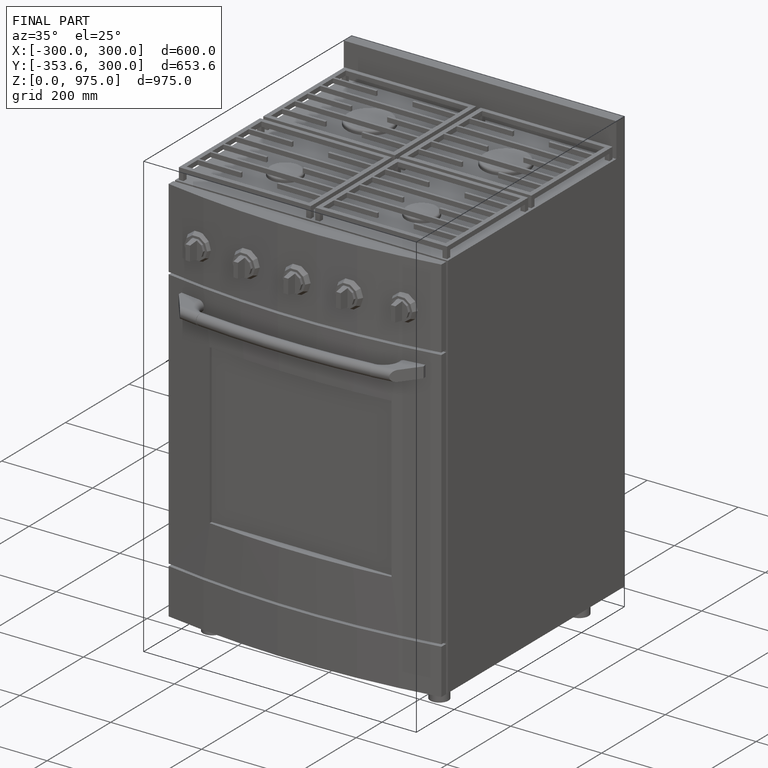
[diagram: finished part — iso view with bounding-box wireframe]
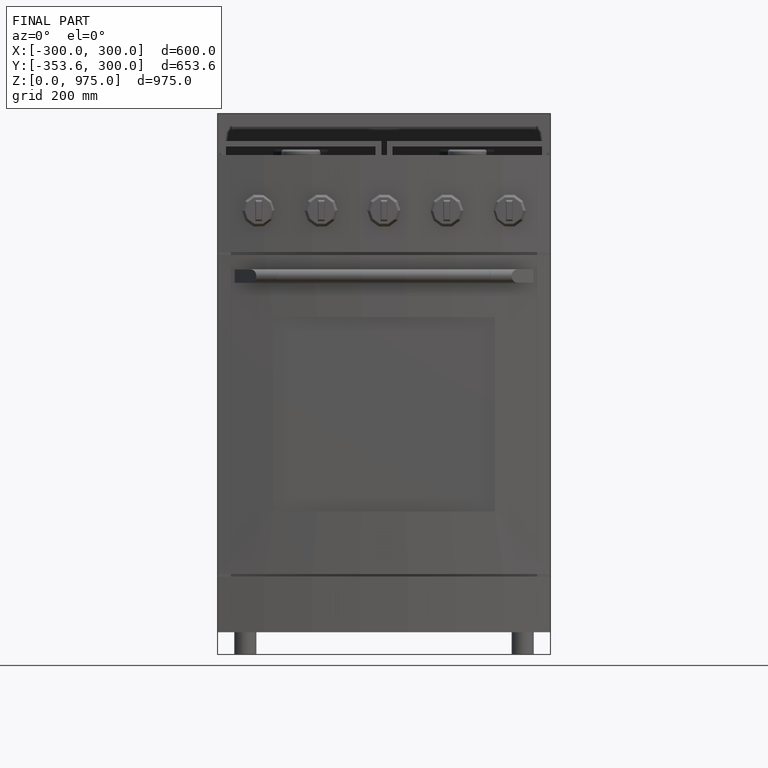
[diagram: finished part — front view with bounding-box wireframe]
